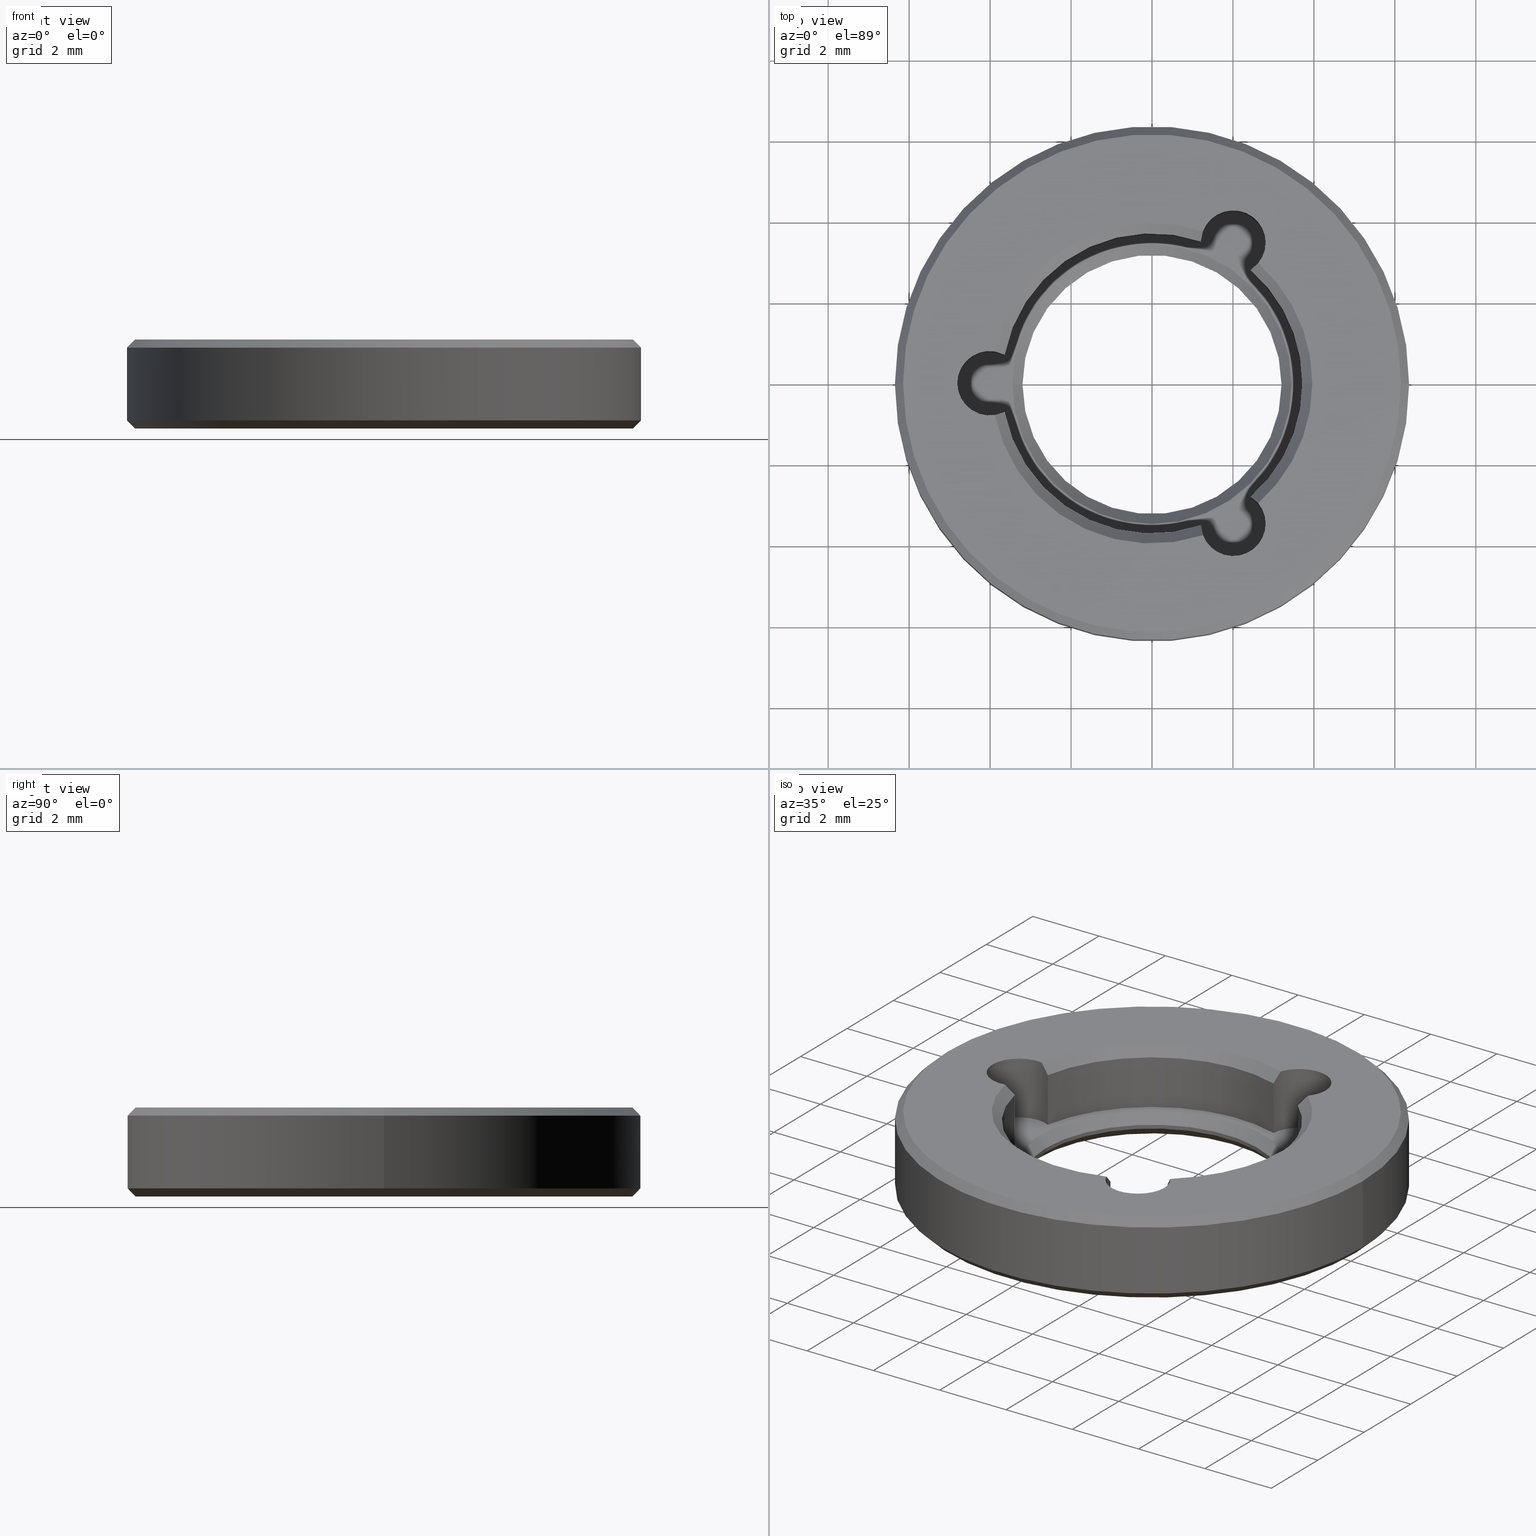
[diagram: canonical four-view strip — front | top / right | iso, engineering-drawing reading convention]
A machine part, canonical four-view strip (front | top / right | iso — engineering-drawing reading convention). The complete STEP part file that produces these views, byte-faithful:
ISO-10303-21;
HEADER;
FILE_DESCRIPTION (( 'STEP AP203' ),
    '1' );
FILE_NAME ('1.6.4.9-ZSJ-05-7.4.STEP',
    '2024-04-15T05:49:52',
    ( '' ),
    ( '' ),
    'SwSTEP 2.0',
    'SolidWorks 2021',
    '' );
FILE_SCHEMA (( 'CONFIG_CONTROL_DESIGN' ));
ENDSEC;

DATA;
#1 = VECTOR ( 'NONE', #695, 1000.000000000000000 ) ;
#2 = CARTESIAN_POINT ( 'NONE',  ( 0.000000000000000000, 0.000000000000000000, 0.6000000000000000888 ) ) ;
#3 = AXIS2_PLACEMENT_3D ( 'NONE', #308, #315, #158 ) ;
#4 = CONICAL_SURFACE ( 'NONE', #153, 3.450000000000003286, 0.7853981633974500554 ) ;
#5 = CARTESIAN_POINT ( 'NONE',  ( 2.004999999999967475, 3.472761869175617910, -1.662741699796954409 ) ) ;
#6 = LINE ( 'NONE', #15, #65 ) ;
#7 = VERTEX_POINT ( 'NONE', #389 ) ;
#8 = CARTESIAN_POINT ( 'NONE',  ( 0.000000000000000000, 0.000000000000000000, 0.1999999999999987899 ) ) ;
#9 = CARTESIAN_POINT ( 'NONE',  ( -3.641421446384038862, 0.7100351046352334494, 1.400000000000000133 ) ) ;
#10 = CARTESIAN_POINT ( 'NONE',  ( 2.005000000000016769, -3.472761869175589489, -1.662741699796954853 ) ) ;
#11 = VERTEX_POINT ( 'NONE', #59 ) ;
#12 = EDGE_CURVE ( 'NONE', #524, #459, #589, .T. ) ;
#13 = DIRECTION ( 'NONE',  ( -0.000000000000000000, 0.000000000000000000, 1.000000000000000000 ) ) ;
#14 = CARTESIAN_POINT ( 'NONE',  ( -6.150000000000000355, 7.654042494670957606E-16, 0.000000000000000000 ) ) ;
#15 = CARTESIAN_POINT ( 'NONE',  ( 3.200000000000000178, 0.000000000000000000, 0.000000000000000000 ) ) ;
#16 = VERTEX_POINT ( 'NONE', #618 ) ;
#17 = CC_DESIGN_PERSON_AND_ORGANIZATION_ASSIGNMENT ( #533, #321, ( #814 ) ) ;
#18 = LINE ( 'NONE', #368, #394 ) ;
#19 = SECURITY_CLASSIFICATION ( '', '', #116 ) ;
#20 = CIRCLE ( 'NONE', #313, 0.8000000000000010436 ) ;
#21 = LINE ( 'NONE', #783, #628 ) ;
#22 = AXIS2_PLACEMENT_3D ( 'NONE', #770, #502, #784 ) ;
#23 = DIRECTION ( 'NONE',  ( -0.000000000000000000, -0.000000000000000000, 1.000000000000000000 ) ) ;
#24 = ORIENTED_EDGE ( 'NONE', *, *, #363, .F. ) ;
#25 = CARTESIAN_POINT ( 'NONE',  ( 1.209650000469256748, -3.594431320801747987, 2.032439968515265427 ) ) ;
#26 = ADVANCED_FACE ( 'NONE', ( #331 ), #62, .F. ) ;
#27 = DIRECTION ( 'NONE',  ( 1.000000000000000000, 0.000000000000000000, 0.000000000000000000 ) ) ;
#28 = APPLICATION_CONTEXT ( 'configuration controlled 3d designs of mechanical parts and assemblies' ) ;
#29 = CYLINDRICAL_SURFACE ( 'NONE', #22, 3.709999999999999964 ) ;
#30 = VERTEX_POINT ( 'NONE', #197 ) ;
#31 = CARTESIAN_POINT ( 'NONE',  ( 2.435619161384848130, 2.798545926136458473, 0.5999999999999998668 ) ) ;
#32 = EDGE_CURVE ( 'NONE', #462, #103, #820, .T. ) ;
#33 = DIRECTION ( 'NONE',  ( -0.000000000000000000, -0.000000000000000000, -1.000000000000000000 ) ) ;
#34 = CALENDAR_DATE ( 2024, 15, 4 ) ;
#35 = VERTEX_POINT ( 'NONE', #892 ) ;
#36 = FACE_OUTER_BOUND ( 'NONE', #551, .T. ) ;
#37 = AXIS2_PLACEMENT_3D ( 'NONE', #757, #761, #411 ) ;
#38 = DIRECTION ( 'NONE',  ( -0.000000000000000000, -0.000000000000000000, 1.000000000000000000 ) ) ;
#39 = AXIS2_PLACEMENT_3D ( 'NONE', #733, #246, #105 ) ;
#40 = VERTEX_POINT ( 'NONE', #267 ) ;
#41 = DIRECTION ( 'NONE',  ( 1.000000000000000000, -3.794707603699261575E-15, 0.000000000000000000 ) ) ;
#42 = LINE ( 'NONE', #691, #543 ) ;
#43 = APPROVAL_DATE_TIME ( #672, #816 ) ;
#44 = ORIENTED_EDGE ( 'NONE', *, *, #473, .F. ) ;
#45 = EDGE_CURVE ( 'NONE', #524, #534, #154, .T. ) ;
#46 = PERSON_AND_ORGANIZATION ( #609, #477 ) ;
#47 = VERTEX_POINT ( 'NONE', #906 ) ;
#48 = VERTEX_POINT ( 'NONE', #14 ) ;
#49 = DATE_TIME_ROLE ( 'creation_date' ) ;
#50 = DIRECTION ( 'NONE',  ( -0.000000000000000000, -0.000000000000000000, -1.000000000000000000 ) ) ;
#51 = VECTOR ( 'NONE', #616, 1000.000000000000000 ) ;
#52 = ADVANCED_FACE ( 'NONE', ( #288 ), #196, .T. ) ;
#53 = ORIENTED_EDGE ( 'NONE', *, *, #423, .T. ) ;
#54 = CARTESIAN_POINT ( 'NONE',  ( 0.000000000000000000, 0.000000000000000000, 1.949999999999998179 ) ) ;
#55 = EDGE_CURVE ( 'NONE', #56, #342, #312, .T. ) ;
#56 = VERTEX_POINT ( 'NONE', #550 ) ;
#57 = ORIENTED_EDGE ( 'NONE', *, *, #45, .F. ) ;
#58 = DIRECTION ( 'NONE',  ( 0.000000000000000000, 0.000000000000000000, 1.000000000000000000 ) ) ;
#59 = CARTESIAN_POINT ( 'NONE',  ( 2.623940108579774222, -2.965895869140787511, 2.200000000000000178 ) ) ;
#60 = CIRCLE ( 'NONE', #592, 3.450000000000001510 ) ;
#61 = EDGE_CURVE ( 'NONE', #16, #11, #572, .T. ) ;
#62 = CONICAL_SURFACE ( 'NONE', #706, 3.709999999999999964, 0.7853981633974517207 ) ;
#63 = CIRCLE ( 'NONE', #605, 3.960000000000003517 ) ;
#64 = CARTESIAN_POINT ( 'NONE',  ( 2.435619161384888098, -2.798545926136423834, 1.949999999999998179 ) ) ;
#65 = VECTOR ( 'NONE', #23, 1000.000000000000000 ) ;
#66 = CARTESIAN_POINT ( 'NONE',  ( 2.623940108579730701, 2.965895869140826591, 2.200000000000000178 ) ) ;
#67 = EDGE_LOOP ( 'NONE', ( #880, #802, #866, #889 ) ) ;
#68 = EDGE_CURVE ( 'NONE', #656, #40, #714, .T. ) ;
#69 = DIRECTION ( 'NONE',  ( 1.000000000000000000, 0.000000000000000000, 0.000000000000000000 ) ) ;
#70 = FACE_OUTER_BOUND ( 'NONE', #221, .T. ) ;
#71 = ORIENTED_EDGE ( 'NONE', *, *, #754, .F. ) ;
#72 = DIRECTION ( 'NONE',  ( 1.000000000000000000, 0.000000000000000000, 0.000000000000000000 ) ) ;
#73 = ADVANCED_BREP_SHAPE_REPRESENTATION ( '1.6.4.9-ZSJ-05-7.4', ( #428, #872 ), #395 ) ;
#74 = CYLINDRICAL_SURFACE ( 'NONE', #168, 0.8000000000000008216 ) ;
#75 = EDGE_LOOP ( 'NONE', ( #461, #195, #408, #286 ) ) ;
#76 = APPROVAL_PERSON_ORGANIZATION ( #46, #681, #330 ) ;
#77 = CARTESIAN_POINT ( 'NONE',  ( 3.450000000000003286, 4.225031457058372768E-16, 0.000000000000000000 ) ) ;
#78 = VECTOR ( 'NONE', #276, 1000.000000000000114 ) ;
#79 = CIRCLE ( 'NONE', #778, 6.349999999999999645 ) ;
#80 = ADVANCED_FACE ( 'NONE', ( #834, #283 ), #141, .T. ) ;
#81 = CARTESIAN_POINT ( 'NONE',  ( 0.000000000000000000, 0.000000000000000000, 0.000000000000000000 ) ) ;
#82 = CARTESIAN_POINT ( 'NONE',  ( 0.000000000000000000, 0.000000000000000000, 0.3500000000000033085 ) ) ;
#83 = ORIENTED_EDGE ( 'NONE', *, *, #606, .T. ) ;
#84 = CARTESIAN_POINT ( 'NONE',  ( 2.004999999999967475, 3.472761869175617910, -1.662741699796954409 ) ) ;
#85 = CYLINDRICAL_SURFACE ( 'NONE', #895, 3.200000000000000178 ) ;
#86 = CARTESIAN_POINT ( 'NONE',  ( -3.641421446384038862, -0.7100351046352345596, 0.6000000000000003109 ) ) ;
#87 = ORIENTED_EDGE ( 'NONE', *, *, #689, .T. ) ;
#88 = DIRECTION ( 'NONE',  ( 0.7071067811865543451, 0.000000000000000000, 0.7071067811865408004 ) ) ;
#89 = DIRECTION ( 'NONE',  ( 1.000000000000000000, 0.000000000000000000, 0.000000000000000000 ) ) ;
#90 = LINE ( 'NONE', #357, #455 ) ;
#91 = EDGE_LOOP ( 'NONE', ( #625, #899, #450, #538 ) ) ;
#92 = ADVANCED_FACE ( 'NONE', ( #205 ), #74, .F. ) ;
#93 = FACE_OUTER_BOUND ( 'NONE', #302, .T. ) ;
#94 = AXIS2_PLACEMENT_3D ( 'NONE', #365, #654, #859 ) ;
#95 = AXIS2_PLACEMENT_3D ( 'NONE', #397, #58, #897 ) ;
#96 = DIRECTION ( 'NONE',  ( 0.000000000000000000, 0.000000000000000000, 1.000000000000000000 ) ) ;
#97 = DIRECTION ( 'NONE',  ( 0.000000000000000000, -0.000000000000000000, 1.000000000000000000 ) ) ;
#98 = EDGE_LOOP ( 'NONE', ( #353, #436, #233, #796 ) ) ;
#99 = DIRECTION ( 'NONE',  ( 1.000000000000000000, 0.000000000000000000, 0.000000000000000000 ) ) ;
#100 = EDGE_CURVE ( 'NONE', #676, #673, #579, .T. ) ;
#101 = CARTESIAN_POINT ( 'NONE',  ( -3.641421446384038862, 0.7100351046352334494, 0.6000000000000003109 ) ) ;
#102 = PERSON_AND_ORGANIZATION_ROLE ( 'creator' ) ;
#103 = VERTEX_POINT ( 'NONE', #843 ) ;
#104 = CARTESIAN_POINT ( 'NONE',  ( 2.435619161384848130, 2.798545926136458473, 1.949999999999997957 ) ) ;
#105 = DIRECTION ( 'NONE',  ( 1.000000000000000000, 0.000000000000000000, 0.000000000000000000 ) ) ;
#106 = COORDINATED_UNIVERSAL_TIME_OFFSET ( 8, 0, .AHEAD. ) ;
#107 = ORIENTED_EDGE ( 'NONE', *, *, #443, .F. ) ;
#108 = CARTESIAN_POINT ( 'NONE',  ( 1.205802284999181850, -3.508581030771663833, 0.6000000000000003109 ) ) ;
#109 = AXIS2_PLACEMENT_3D ( 'NONE', #216, #848, #160 ) ;
#110 = CARTESIAN_POINT ( 'NONE',  ( 0.000000000000000000, 0.000000000000000000, 0.6000000000000000888 ) ) ;
#111 = EDGE_CURVE ( 'NONE', #342, #686, #183, .T. ) ;
#112 = CIRCLE ( 'NONE', #617, 3.450000000000003286 ) ;
#113 = PERSON_AND_ORGANIZATION ( #609, #477 ) ;
#114 = ORIENTED_EDGE ( 'NONE', *, *, #55, .T. ) ;
#115 = AXIS2_PLACEMENT_3D ( 'NONE', #700, #229, #349 ) ;
#116 = SECURITY_CLASSIFICATION_LEVEL ( 'unclassified' ) ;
#117 = ORIENTED_EDGE ( 'NONE', *, *, #678, .F. ) ;
#118 = ADVANCED_FACE ( 'NONE', ( #474 ), #85, .F. ) ;
#119 = CALENDAR_DATE ( 2024, 15, 4 ) ;
#120 = ORIENTED_EDGE ( 'NONE', *, *, #204, .F. ) ;
#121 = EDGE_CURVE ( 'NONE', #845, #683, #680, .T. ) ;
#122 = AXIS2_PLACEMENT_3D ( 'NONE', #110, #375, #27 ) ;
#123 = ORIENTED_EDGE ( 'NONE', *, *, #674, .F. ) ;
#124 = VECTOR ( 'NONE', #860, 1000.000000000000114 ) ;
#125 = DIRECTION ( 'NONE',  ( 1.000000000000000000, 0.000000000000000000, 0.000000000000000000 ) ) ;
#126 = APPROVAL ( #388, 'δָ��' ) ;
#127 = ORIENTED_EDGE ( 'NONE', *, *, #297, .F. ) ;
#128 = ORIENTED_EDGE ( 'NONE', *, *, #890, .F. ) ;
#129 = FACE_BOUND ( 'NONE', #608, .T. ) ;
#130 = VERTEX_POINT ( 'NONE', #66 ) ;
#131 = FACE_OUTER_BOUND ( 'NONE', #253, .T. ) ;
#132 = LINE ( 'NONE', #9, #760 ) ;
#133 = ADVANCED_FACE ( 'NONE', ( #769 ), #777, .T. ) ;
#134 = AXIS2_PLACEMENT_3D ( 'NONE', #479, #145, #351 ) ;
#135 = VECTOR ( 'NONE', #88, 1000.000000000000114 ) ;
#136 = CARTESIAN_POINT ( 'NONE',  ( 0.000000000000000000, 0.000000000000000000, 0.000000000000000000 ) ) ;
#137 = AXIS2_PLACEMENT_3D ( 'NONE', #440, #285, #227 ) ;
#138 = DIRECTION ( 'NONE',  ( -0.000000000000000000, 0.000000000000000000, 1.000000000000000000 ) ) ;
#139 = EDGE_LOOP ( 'NONE', ( #272, #749, #279, #310, #711, #725, #471, #446, #688 ) ) ;
#140 = DIRECTION ( 'NONE',  ( 0.000000000000000000, 0.000000000000000000, 1.000000000000000000 ) ) ;
#141 = PLANE ( 'NONE',  #822 ) ;
#142 = EDGE_LOOP ( 'NONE', ( #53, #275 ) ) ;
#143 = DIRECTION ( 'NONE',  ( -0.4999999999999920064, -0.8660254037844432595, 0.000000000000000000 ) ) ;
#144 = ADVANCED_FACE ( 'NONE', ( #483, #70 ), #274, .T. ) ;
#145 = DIRECTION ( 'NONE',  ( -0.000000000000000000, -0.000000000000000000, -1.000000000000000000 ) ) ;
#146 = CARTESIAN_POINT ( 'NONE',  ( 3.709999999999999964, 0.000000000000000000, 1.949999999999998179 ) ) ;
#147 = ORIENTED_EDGE ( 'NONE', *, *, #225, .F. ) ;
#148 = LOCAL_TIME ( 13, 49, 52.00000000000000000, #106 ) ;
#149 = CLOSED_SHELL ( 'NONE', ( #92, #798, #506, #52, #767, #500, #409, #133, #577, #635, #840, #350, #663, #26, #894, #144, #335, #177, #80, #118, #642, #877, #309, #537, #804, #732, #823, #596 ) ) ;
#150 = DIRECTION ( 'NONE',  ( -0.7071067811865490160, 0.000000000000000000, -0.7071067811865459074 ) ) ;
#151 = AXIS2_PLACEMENT_3D ( 'NONE', #136, #541, #456 ) ;
#152 = EDGE_CURVE ( 'NONE', #656, #588, #255, .T. ) ;
#153 = AXIS2_PLACEMENT_3D ( 'NONE', #567, #220, #584 ) ;
#154 = LINE ( 'NONE', #624, #405 ) ;
#155 = CYLINDRICAL_SURFACE ( 'NONE', #690, 0.8000000000000008216 ) ;
#156 = ORIENTED_EDGE ( 'NONE', *, *, #32, .T. ) ;
#157 = FACE_OUTER_BOUND ( 'NONE', #547, .T. ) ;
#158 = DIRECTION ( 'NONE',  ( -0.5000000000000039968, 0.8660254037844362651, 0.000000000000000000 ) ) ;
#159 = EDGE_CURVE ( 'NONE', #332, #190, #132, .T. ) ;
#160 = DIRECTION ( 'NONE',  ( -1.000000000000000000, 0.000000000000000000, 0.000000000000000000 ) ) ;
#161 = ORIENTED_EDGE ( 'NONE', *, *, #111, .F. ) ;
#162 = DIRECTION ( 'NONE',  ( 1.000000000000000000, 0.000000000000000000, 0.000000000000000000 ) ) ;
#163 = DIRECTION ( 'NONE',  ( 0.000000000000000000, 0.000000000000000000, 1.000000000000000000 ) ) ;
#164 = DIRECTION ( 'NONE',  ( 0.000000000000000000, -0.000000000000000000, -1.000000000000000000 ) ) ;
#165 = VERTEX_POINT ( 'NONE', #583 ) ;
#166 = EDGE_CURVE ( 'NONE', #415, #35, #792, .T. ) ;
#167 = FACE_OUTER_BOUND ( 'NONE', #739, .T. ) ;
#168 = AXIS2_PLACEMENT_3D ( 'NONE', #5, #138, #219 ) ;
#169 = AXIS2_PLACEMENT_3D ( 'NONE', #772, #842, #234 ) ;
#170 = CARTESIAN_POINT ( 'NONE',  ( 6.150000000000000355, 0.000000000000000000, 0.000000000000000000 ) ) ;
#171 = DIRECTION ( 'NONE',  ( 0.7071067811865500152, 0.000000000000000000, 0.7071067811865451302 ) ) ;
#172 = ORIENTED_EDGE ( 'NONE', *, *, #465, .T. ) ;
#173 = DIRECTION ( 'NONE',  ( 1.000000000000000000, 0.000000000000000000, 0.000000000000000000 ) ) ;
#174 = DIRECTION ( 'NONE',  ( 1.000000000000000000, 0.000000000000000000, 0.000000000000000000 ) ) ;
#175 = EDGE_LOOP ( 'NONE', ( #835, #396, #117, #208 ) ) ;
#176 = CARTESIAN_POINT ( 'NONE',  ( 2.005000000000016769, -3.472761869175589489, 0.6000000000000003109 ) ) ;
#177 = ADVANCED_FACE ( 'NONE', ( #853 ), #728, .F. ) ;
#178 = DIRECTION ( 'NONE',  ( 1.000000000000000000, -3.552713678800500929E-15, 0.000000000000000000 ) ) ;
#179 = ORIENTED_EDGE ( 'NONE', *, *, #627, .T. ) ;
#180 = DIRECTION ( 'NONE',  ( 1.000000000000000000, 0.000000000000000000, 0.000000000000000000 ) ) ;
#181 = CIRCLE ( 'NONE', #403, 3.960000000000003517 ) ;
#182 = EDGE_CURVE ( 'NONE', #342, #7, #800, .T. ) ;
#183 = CIRCLE ( 'NONE', #646, 0.8000000000000008216 ) ;
#184 = DIRECTION ( 'NONE',  ( 0.000000000000000000, 0.000000000000000000, 1.000000000000000000 ) ) ;
#185 = CONICAL_SURFACE ( 'NONE', #39, 3.200000000000000178, 0.7853981633974579379 ) ;
#186 = CALENDAR_DATE ( 2024, 15, 4 ) ;
#187 = ORIENTED_EDGE ( 'NONE', *, *, #705, .T. ) ;
#188 = VECTOR ( 'NONE', #13, 1000.000000000000000 ) ;
#189 = PERSON_AND_ORGANIZATION ( #609, #477 ) ;
#190 = VERTEX_POINT ( 'NONE', #101 ) ;
#191 = EDGE_CURVE ( 'NONE', #30, #520, #883, .T. ) ;
#192 = DATE_AND_TIME ( #819, #493 ) ;
#193 = ORIENTED_EDGE ( 'NONE', *, *, #45, .T. ) ;
#194 = EDGE_CURVE ( 'NONE', #56, #190, #723, .T. ) ;
#195 = ORIENTED_EDGE ( 'NONE', *, *, #701, .T. ) ;
#196 = CONICAL_SURFACE ( 'NONE', #556, 6.349999999999999645, 0.7853981633974504994 ) ;
#197 = CARTESIAN_POINT ( 'NONE',  ( -6.149999999999999467, 0.000000000000000000, 2.200000000000000178 ) ) ;
#198 = CIRCLE ( 'NONE', #354, 3.200000000000000178 ) ;
#199 = AXIS2_PLACEMENT_3D ( 'NONE', #282, #786, #162 ) ;
#200 = CARTESIAN_POINT ( 'NONE',  ( 6.149999999999999467, 7.531577814756219106E-16, 2.200000000000000178 ) ) ;
#201 = ORIENTED_EDGE ( 'NONE', *, *, #182, .T. ) ;
#202 = ORIENTED_EDGE ( 'NONE', *, *, #852, .T. ) ;
#203 = CARTESIAN_POINT ( 'NONE',  ( -3.450000000000001510, 4.225031457058370303E-16, 0.6000000000000000888 ) ) ;
#204 = EDGE_CURVE ( 'NONE', #845, #190, #494, .T. ) ;
#205 = FACE_OUTER_BOUND ( 'NONE', #468, .T. ) ;
#206 = CARTESIAN_POINT ( 'NONE',  ( 0.000000000000000000, 0.000000000000000000, 1.949999999999998179 ) ) ;
#207 = CARTESIAN_POINT ( 'NONE',  ( 0.000000000000000000, 0.000000000000000000, 2.200000000000000178 ) ) ;
#208 = ORIENTED_EDGE ( 'NONE', *, *, #905, .F. ) ;
#209 = AXIS2_PLACEMENT_3D ( 'NONE', #214, #303, #781 ) ;
#210 = CARTESIAN_POINT ( 'NONE',  ( 0.000000000000000000, 0.000000000000000000, 0.000000000000000000 ) ) ;
#211 = DIRECTION ( 'NONE',  ( -0.000000000000000000, -0.000000000000000000, -1.000000000000000000 ) ) ;
#212 = ORIENTED_EDGE ( 'NONE', *, *, #606, .F. ) ;
#213 = EDGE_CURVE ( 'NONE', #845, #673, #21, .T. ) ;
#214 = CARTESIAN_POINT ( 'NONE',  ( 0.000000000000000000, 0.000000000000000000, 2.200000000000000178 ) ) ;
#215 = DIRECTION ( 'NONE',  ( 1.000000000000000000, 0.000000000000000000, 0.000000000000000000 ) ) ;
#216 = CARTESIAN_POINT ( 'NONE',  ( 0.000000000000000000, 0.000000000000000000, 2.200000000000000178 ) ) ;
#217 = ORIENTED_EDGE ( 'NONE', *, *, #225, .T. ) ;
#218 = CARTESIAN_POINT ( 'NONE',  ( 6.349999999999999645, 7.776507174585692163E-16, 2.000000000000000444 ) ) ;
#219 = DIRECTION ( 'NONE',  ( 1.000000000000000000, 0.000000000000000000, 0.000000000000000000 ) ) ;
#220 = DIRECTION ( 'NONE',  ( -0.000000000000000000, -0.000000000000000000, -1.000000000000000000 ) ) ;
#221 = EDGE_LOOP ( 'NONE', ( #595, #903 ) ) ;
#222 = CIRCLE ( 'NONE', #693, 3.450000000000001510 ) ;
#223 = CC_DESIGN_APPROVAL ( #681, ( #19 ) ) ;
#224 = DIRECTION ( 'NONE',  ( 0.000000000000000000, 0.000000000000000000, 1.000000000000000000 ) ) ;
#225 = EDGE_CURVE ( 'NONE', #462, #683, #239, .T. ) ;
#226 = CARTESIAN_POINT ( 'NONE',  ( 1.226823854763343435, 3.676560807795078656, 2.115846467630483119 ) ) ;
#227 = DIRECTION ( 'NONE',  ( -1.000000000000000000, 0.000000000000000000, 0.000000000000000000 ) ) ;
#228 = ORIENTED_EDGE ( 'NONE', *, *, #619, .T. ) ;
#229 = DIRECTION ( 'NONE',  ( -0.000000000000000000, -0.000000000000000000, 1.000000000000000000 ) ) ;
#230 = EDGE_CURVE ( 'NONE', #771, #386, #382, .T. ) ;
#231 = CARTESIAN_POINT ( 'NONE',  ( 3.709999999999999964, 0.000000000000000000, 1.949999999999998179 ) ) ;
#232 = CARTESIAN_POINT ( 'NONE',  ( 6.349999999999999645, 7.776507174585692163E-16, 2.200000000000000178 ) ) ;
#233 = ORIENTED_EDGE ( 'NONE', *, *, #619, .F. ) ;
#234 = DIRECTION ( 'NONE',  ( -1.000000000000000000, 0.000000000000000000, 0.000000000000000000 ) ) ;
#235 = CARTESIAN_POINT ( 'NONE',  ( 2.508043835738169580, -2.844803290495086845, 2.032439968515269424 ) ) ;
#236 = DIRECTION ( 'NONE',  ( 0.000000000000000000, 0.000000000000000000, 1.000000000000000000 ) ) ;
#237 = ORIENTED_EDGE ( 'NONE', *, *, #610, .T. ) ;
#238 = CARTESIAN_POINT ( 'NONE',  ( -3.880511221945140754, -0.7894508574685707991, 2.200000000000000178 ) ) ;
#239 = CIRCLE ( 'NONE', #531, 0.8000000000000008216 ) ;
#240 = VECTOR ( 'NONE', #164, 1000.000000000000000 ) ;
#241 = FACE_OUTER_BOUND ( 'NONE', #885, .T. ) ;
#242 =( LENGTH_UNIT ( ) NAMED_UNIT ( * ) SI_UNIT ( .MILLI., .METRE. ) );
#243 = ORIENTED_EDGE ( 'NONE', *, *, #111, .T. ) ;
#244 = EDGE_CURVE ( 'NONE', #861, #103, #590, .T. ) ;
#245 = CARTESIAN_POINT ( 'NONE',  ( -3.641421446384039751, 0.7100351046352340045, 1.949999999999998179 ) ) ;
#246 = DIRECTION ( 'NONE',  ( 0.000000000000000000, 0.000000000000000000, 1.000000000000000000 ) ) ;
#247 = DATE_AND_TIME ( #594, #148 ) ;
#248 = ORIENTED_EDGE ( 'NONE', *, *, #326, .T. ) ;
#249 = CYLINDRICAL_SURFACE ( 'NONE', #341, 0.8000000000000008216 ) ;
#250 = CC_DESIGN_PERSON_AND_ORGANIZATION_ASSIGNMENT ( #189, #252, ( #19 ) ) ;
#251 = DIRECTION ( 'NONE',  ( 1.000000000000000000, 0.000000000000000000, 0.000000000000000000 ) ) ;
#252 = PERSON_AND_ORGANIZATION_ROLE ( 'classification_officer' ) ;
#253 = EDGE_LOOP ( 'NONE', ( #818, #202, #172, #128 ) ) ;
#254 = EDGE_CURVE ( 'NONE', #11, #426, #745, .T. ) ;
#255 = CIRCLE ( 'NONE', #667, 6.349999999999999645 ) ;
#256 = AXIS2_PLACEMENT_3D ( 'NONE', #571, #304, #434 ) ;
#257 = MECHANICAL_CONTEXT ( 'NONE', #850, 'mechanical' ) ;
#258 = ORIENTED_EDGE ( 'NONE', *, *, #864, .F. ) ;
#259 = VERTEX_POINT ( 'NONE', #231 ) ;
#260 = COORDINATED_UNIVERSAL_TIME_OFFSET ( 8, 0, .AHEAD. ) ;
#261 = ORIENTED_EDGE ( 'NONE', *, *, #55, .F. ) ;
#262 = ORIENTED_EDGE ( 'NONE', *, *, #490, .T. ) ;
#263 = ORIENTED_EDGE ( 'NONE', *, *, #398, .T. ) ;
#264 = DIRECTION ( 'NONE',  ( 1.000000000000000000, 0.000000000000000000, 0.000000000000000000 ) ) ;
#265 = AXIS2_PLACEMENT_3D ( 'NONE', #82, #236, #789 ) ;
#266 = LOCAL_TIME ( 13, 49, 52.00000000000000000, #458 ) ;
#267 = CARTESIAN_POINT ( 'NONE',  ( -6.349999999999999645, 0.000000000000000000, 0.1999999999999987899 ) ) ;
#268 = CIRCLE ( 'NONE', #3, 0.8000000000000009326 ) ;
#269 = EDGE_CURVE ( 'NONE', #641, #165, #838, .T. ) ;
#270 = CARTESIAN_POINT ( 'NONE',  ( 0.000000000000000000, 0.000000000000000000, 0.3500000000000033085 ) ) ;
#271 = EDGE_LOOP ( 'NONE', ( #536, #696, #648, #750 ) ) ;
#272 = ORIENTED_EDGE ( 'NONE', *, *, #277, .F. ) ;
#273 = DIRECTION ( 'NONE',  ( 0.000000000000000000, -0.000000000000000000, 1.000000000000000000 ) ) ;
#274 = PLANE ( 'NONE',  #37 ) ;
#275 = ORIENTED_EDGE ( 'NONE', *, *, #374, .T. ) ;
#276 = DIRECTION ( 'NONE',  ( -0.7071067811865543451, 8.659560562355016675E-17, 0.7071067811865408004 ) ) ;
#277 = EDGE_CURVE ( 'NONE', #130, #7, #575, .T. ) ;
#278 = DIRECTION ( 'NONE',  ( 1.000000000000000000, 0.000000000000000000, 0.000000000000000000 ) ) ;
#279 = ORIENTED_EDGE ( 'NONE', *, *, #61, .T. ) ;
#280 = AXIS2_PLACEMENT_3D ( 'NONE', #355, #364, #633 ) ;
#281 = CONICAL_SURFACE ( 'NONE', #794, 6.349999999999999645, 0.7853981633974504994 ) ;
#282 = CARTESIAN_POINT ( 'NONE',  ( 0.000000000000000000, 0.000000000000000000, 1.949999999999998179 ) ) ;
#283 = FACE_OUTER_BOUND ( 'NONE', #888, .T. ) ;
#284 = EDGE_CURVE ( 'NONE', #103, #11, #268, .T. ) ;
#285 = DIRECTION ( 'NONE',  ( -0.000000000000000000, -0.000000000000000000, -1.000000000000000000 ) ) ;
#286 = ORIENTED_EDGE ( 'NONE', *, *, #901, .F. ) ;
#287 = CARTESIAN_POINT ( 'NONE',  ( 0.000000000000000000, 0.000000000000000000, 2.000000000000000444 ) ) ;
#288 = FACE_OUTER_BOUND ( 'NONE', #75, .T. ) ;
#289 = LINE ( 'NONE', #371, #240 ) ;
#290 = ORIENTED_EDGE ( 'NONE', *, *, #905, .T. ) ;
#291 = CARTESIAN_POINT ( 'NONE',  ( 1.226823854763395838, -3.676560807795061336, 2.115846467630482231 ) ) ;
#292 = B_SPLINE_CURVE_WITH_KNOTS ( 'NONE', 3,
 ( #245, #521, #803, #442 ),
 .UNSPECIFIED., .F., .F.,
 ( 4, 4 ),
 ( 2.870187315776022366E-07, 0.0003552106479451357600 ),
 .UNSPECIFIED. ) ;
#293 = CARTESIAN_POINT ( 'NONE',  ( 2.004999999999967475, 3.472761869175617910, 2.200000000000000178 ) ) ;
#294 = CYLINDRICAL_SURFACE ( 'NONE', #137, 6.349999999999999645 ) ;
#295 = VERTEX_POINT ( 'NONE', #170 ) ;
#296 = DIRECTION ( 'NONE',  ( 0.000000000000000000, 0.000000000000000000, 1.000000000000000000 ) ) ;
#297 = EDGE_CURVE ( 'NONE', #861, #676, #869, .T. ) ;
#298 = AXIS2_PLACEMENT_3D ( 'NONE', #206, #184, #264 ) ;
#299 = CIRCLE ( 'NONE', #467, 0.8000000000000008216 ) ;
#300 = CARTESIAN_POINT ( 'NONE',  ( 1.256571113365344994, 3.755346726609382735, 2.200000000000000178 ) ) ;
#301 = LINE ( 'NONE', #580, #124 ) ;
#302 = EDGE_LOOP ( 'NONE', ( #554, #734, #856, #484 ) ) ;
#303 = DIRECTION ( 'NONE',  ( 0.000000000000000000, 0.000000000000000000, -1.000000000000000000 ) ) ;
#304 = DIRECTION ( 'NONE',  ( 0.000000000000000000, 0.000000000000000000, 1.000000000000000000 ) ) ;
#305 = LINE ( 'NONE', #232, #773 ) ;
#306 = ORIENTED_EDGE ( 'NONE', *, *, #284, .T. ) ;
#307 = CARTESIAN_POINT ( 'NONE',  ( -4.009999999999999787, -4.910833664580885594E-16, -1.662741699796954853 ) ) ;
#308 = CARTESIAN_POINT ( 'NONE',  ( 2.005000000000016769, -3.472761869175589489, 2.200000000000000178 ) ) ;
#309 = ADVANCED_FACE ( 'NONE', ( #241 ), #185, .F. ) ;
#310 = ORIENTED_EDGE ( 'NONE', *, *, #284, .F. ) ;
#311 = DIRECTION ( 'NONE',  ( 1.000000000000000000, 0.000000000000000000, 0.000000000000000000 ) ) ;
#312 = CIRCLE ( 'NONE', #530, 0.8000000000000008216 ) ;
#313 = AXIS2_PLACEMENT_3D ( 'NONE', #555, #140, #143 ) ;
#314 = VECTOR ( 'NONE', #381, 1000.000000000000114 ) ;
#315 = DIRECTION ( 'NONE',  ( 0.000000000000000000, 0.000000000000000000, 1.000000000000000000 ) ) ;
#316 = PERSON_AND_ORGANIZATION ( #609, #477 ) ;
#317 = ORIENTED_EDGE ( 'NONE', *, *, #100, .T. ) ;
#318 = EDGE_CURVE ( 'NONE', #130, #16, #63, .T. ) ;
#319 = CARTESIAN_POINT ( 'NONE',  ( 2.508043835738128724, 2.844803290495122372, 2.032439968515269424 ) ) ;
#320 = CARTESIAN_POINT ( 'NONE',  ( -3.641421446384039751, 0.7100351046352340045, 1.949999999999998179 ) ) ;
#321 = PERSON_AND_ORGANIZATION_ROLE ( 'creator' ) ;
#322 = ORIENTED_EDGE ( 'NONE', *, *, #423, .F. ) ;
#323 = EDGE_CURVE ( 'NONE', #766, #40, #824, .T. ) ;
#324 = ORIENTED_EDGE ( 'NONE', *, *, #121, .T. ) ;
#325 = ORIENTED_EDGE ( 'NONE', *, *, #68, .F. ) ;
#326 = EDGE_CURVE ( 'NONE', #459, #790, #645, .T. ) ;
#327 = B_SPLINE_CURVE_WITH_KNOTS ( 'NONE', 3,
 ( #652, #25, #291, #569 ),
 .UNSPECIFIED., .F., .F.,
 ( 4, 4 ),
 ( 2.870187314672948299E-07, 0.0003552106479450251172 ),
 .UNSPECIFIED. ) ;
#328 = AXIS2_PLACEMENT_3D ( 'NONE', #444, #33, #793 ) ;
#329 = CIRCLE ( 'NONE', #466, 3.709999999999999964 ) ;
#330 = APPROVAL_ROLE ( '' ) ;
#331 = FACE_OUTER_BOUND ( 'NONE', #730, .T. ) ;
#332 = VERTEX_POINT ( 'NONE', #320 ) ;
#333 = CARTESIAN_POINT ( 'NONE',  ( 0.000000000000000000, 0.000000000000000000, 0.000000000000000000 ) ) ;
#334 = CARTESIAN_POINT ( 'NONE',  ( 2.805000000000017479, -3.472761869175589489, -1.662741699796954853 ) ) ;
#335 = ADVANCED_FACE ( 'NONE', ( #623, #129 ), #684, .F. ) ;
#336 = CARTESIAN_POINT ( 'NONE',  ( 2.435619161384887210, -2.798545926136423390, 0.6000000000000003109 ) ) ;
#337 = CONICAL_SURFACE ( 'NONE', #199, 3.709999999999999964, 0.7853981633974517207 ) ;
#338 = VERTEX_POINT ( 'NONE', #203 ) ;
#339 = AXIS2_PLACEMENT_3D ( 'NONE', #343, #900, #125 ) ;
#340 = EDGE_CURVE ( 'NONE', #259, #841, #692, .T. ) ;
#341 = AXIS2_PLACEMENT_3D ( 'NONE', #307, #525, #311 ) ;
#342 = VERTEX_POINT ( 'NONE', #904 ) ;
#343 = CARTESIAN_POINT ( 'NONE',  ( 0.000000000000000000, 0.000000000000000000, 2.200000000000000178 ) ) ;
#344 = DIRECTION ( 'NONE',  ( -0.000000000000000000, -0.000000000000000000, 1.000000000000000000 ) ) ;
#345 = ORIENTED_EDGE ( 'NONE', *, *, #12, .F. ) ;
#346 = CARTESIAN_POINT ( 'NONE',  ( -3.200000000000000178, 3.918869757271530460E-16, 0.3500000000000033085 ) ) ;
#347 = CARTESIAN_POINT ( 'NONE',  ( -3.797406985490453746, -0.7758197797036981980, 2.115846467630482675 ) ) ;
#348 = ORIENTED_EDGE ( 'NONE', *, *, #678, .T. ) ;
#349 = DIRECTION ( 'NONE',  ( 1.000000000000000000, 0.000000000000000000, 0.000000000000000000 ) ) ;
#350 = ADVANCED_FACE ( 'NONE', ( #400 ), #421, .F. ) ;
#351 = DIRECTION ( 'NONE',  ( 1.000000000000000000, 0.000000000000000000, 0.000000000000000000 ) ) ;
#352 = DIRECTION ( 'NONE',  ( 0.000000000000000000, 0.000000000000000000, 1.000000000000000000 ) ) ;
#353 = ORIENTED_EDGE ( 'NONE', *, *, #465, .F. ) ;
#354 = AXIS2_PLACEMENT_3D ( 'NONE', #410, #413, #697 ) ;
#355 = CARTESIAN_POINT ( 'NONE',  ( -4.009999999999999787, -4.910833664580885594E-16, 2.200000000000000178 ) ) ;
#356 = DIRECTION ( 'NONE',  ( 1.000000000000000000, 0.000000000000000000, 0.000000000000000000 ) ) ;
#357 = CARTESIAN_POINT ( 'NONE',  ( -3.200000000000000178, 3.918869757271530460E-16, 0.000000000000000000 ) ) ;
#358 = ORIENTED_EDGE ( 'NONE', *, *, #230, .F. ) ;
#359 = DIRECTION ( 'NONE',  ( -0.000000000000000000, 0.000000000000000000, 1.000000000000000000 ) ) ;
#360 = DIRECTION ( 'NONE',  ( 1.000000000000000000, 0.000000000000000000, 0.000000000000000000 ) ) ;
#361 = FACE_OUTER_BOUND ( 'NONE', #91, .T. ) ;
#362 = VERTEX_POINT ( 'NONE', #598 ) ;
#363 = EDGE_CURVE ( 'NONE', #459, #524, #198, .T. ) ;
#364 = DIRECTION ( 'NONE',  ( 0.000000000000000000, 0.000000000000000000, 1.000000000000000000 ) ) ;
#365 = CARTESIAN_POINT ( 'NONE',  ( 0.000000000000000000, 0.000000000000000000, 0.6000000000000000888 ) ) ;
#366 = DIRECTION ( 'NONE',  ( -0.000000000000000000, -0.000000000000000000, 1.000000000000000000 ) ) ;
#367 = ORIENTED_EDGE ( 'NONE', *, *, #782, .F. ) ;
#368 = CARTESIAN_POINT ( 'NONE',  ( 3.709999999999999964, 0.000000000000000000, 0.6000000000000000888 ) ) ;
#369 = CIRCLE ( 'NONE', #95, 3.709999999999999964 ) ;
#370 = CARTESIAN_POINT ( 'NONE',  ( 0.000000000000000000, 0.000000000000000000, 0.3500000000000033085 ) ) ;
#371 = CARTESIAN_POINT ( 'NONE',  ( 2.435619161384848130, 2.798545926136458473, 1.399999999999998801 ) ) ;
#372 = EDGE_LOOP ( 'NONE', ( #827, #685, #699, #488 ) ) ;
#373 = CARTESIAN_POINT ( 'NONE',  ( 0.000000000000000000, 0.000000000000000000, 2.200000000000000178 ) ) ;
#374 = EDGE_CURVE ( 'NONE', #48, #295, #707, .T. ) ;
#375 = DIRECTION ( 'NONE',  ( 0.000000000000000000, 0.000000000000000000, 1.000000000000000000 ) ) ;
#376 = ORIENTED_EDGE ( 'NONE', *, *, #457, .F. ) ;
#377 = CARTESIAN_POINT ( 'NONE',  ( -6.349999999999999645, 7.776507174585692163E-16, 0.1999999999999987899 ) ) ;
#378 = PRODUCT_RELATED_PRODUCT_CATEGORY ( 'detail', '', ( #787 ) ) ;
#379 = CARTESIAN_POINT ( 'NONE',  ( 2.005000000000016769, -3.472761869175589489, 0.6000000000000003109 ) ) ;
#380 = EDGE_LOOP ( 'NONE', ( #57, #24, #248, #503 ) ) ;
#381 = DIRECTION ( 'NONE',  ( -0.7071067811865490160, 8.659560562354953812E-17, 0.7071067811865460184 ) ) ;
#382 = CIRCLE ( 'NONE', #558, 3.200000000000000178 ) ;
#383 = AXIS2_PLACEMENT_3D ( 'NONE', #10, #97, #729 ) ;
#384 = DIRECTION ( 'NONE',  ( 1.000000000000000000, 0.000000000000000000, 0.000000000000000000 ) ) ;
#385 = DATE_AND_TIME ( #34, #266 ) ;
#386 = VERTEX_POINT ( 'NONE', #548 ) ;
#387 = EDGE_CURVE ( 'NONE', #415, #426, #42, .T. ) ;
#388 = APPROVAL_STATUS ( 'not_yet_approved' ) ;
#389 = CARTESIAN_POINT ( 'NONE',  ( 2.804999999999968185, 3.472761869175617910, 2.200000000000000178 ) ) ;
#390 = EDGE_CURVE ( 'NONE', #534, #790, #112, .T. ) ;
#391 = APPROVAL_STATUS ( 'not_yet_approved' ) ;
#392 = CARTESIAN_POINT ( 'NONE',  ( 0.000000000000000000, 0.000000000000000000, 0.2500000000000023870 ) ) ;
#393 = CC_DESIGN_SECURITY_CLASSIFICATION ( #19, ( #814 ) ) ;
#394 = VECTOR ( 'NONE', #704, 1000.000000000000000 ) ;
#395 =( GEOMETRIC_REPRESENTATION_CONTEXT ( 3 ) GLOBAL_UNCERTAINTY_ASSIGNED_CONTEXT ( ( #432 ) ) GLOBAL_UNIT_ASSIGNED_CONTEXT ( ( #242, #599, #664 ) ) REPRESENTATION_CONTEXT ( 'NONE', 'WORKASPACE' ) );
#396 = ORIENTED_EDGE ( 'NONE', *, *, #763, .F. ) ;
#397 = CARTESIAN_POINT ( 'NONE',  ( 0.000000000000000000, 0.000000000000000000, 1.949999999999998179 ) ) ;
#398 = EDGE_CURVE ( 'NONE', #673, #47, #329, .T. ) ;
#399 = ORIENTED_EDGE ( 'NONE', *, *, #754, .T. ) ;
#400 = FACE_OUTER_BOUND ( 'NONE', #175, .T. ) ;
#401 = ORIENTED_EDGE ( 'NONE', *, *, #326, .F. ) ;
#402 = DIRECTION ( 'NONE',  ( 0.000000000000000000, 0.000000000000000000, 1.000000000000000000 ) ) ;
#403 = AXIS2_PLACEMENT_3D ( 'NONE', #373, #507, #844 ) ;
#404 = APPROVAL_PERSON_ORGANIZATION ( #113, #816, #746 ) ;
#405 = VECTOR ( 'NONE', #406, 1000.000000000000000 ) ;
#406 = DIRECTION ( 'NONE',  ( 0.7071067811865487940, 8.659560562354950115E-17, -0.7071067811865463515 ) ) ;
#407 = AXIS2_PLACEMENT_3D ( 'NONE', #54, #476, #810 ) ;
#408 = ORIENTED_EDGE ( 'NONE', *, *, #323, .F. ) ;
#409 = ADVANCED_FACE ( 'NONE', ( #131 ), #829, .F. ) ;
#410 = CARTESIAN_POINT ( 'NONE',  ( 0.000000000000000000, 0.000000000000000000, 0.2500000000000023870 ) ) ;
#411 = DIRECTION ( 'NONE',  ( 1.000000000000000000, 0.000000000000000000, -0.000000000000000000 ) ) ;
#412 = ORIENTED_EDGE ( 'NONE', *, *, #744, .F. ) ;
#413 = DIRECTION ( 'NONE',  ( -0.000000000000000000, -0.000000000000000000, -1.000000000000000000 ) ) ;
#414 = CARTESIAN_POINT ( 'NONE',  ( -3.717693836207391467, -0.7496280303066577000, 2.032439968515264983 ) ) ;
#415 = VERTEX_POINT ( 'NONE', #336 ) ;
#416 = LINE ( 'NONE', #721, #682 ) ;
#417 = DIRECTION ( 'NONE',  ( -0.000000000000000000, -0.000000000000000000, -1.000000000000000000 ) ) ;
#418 = AXIS2_PLACEMENT_3D ( 'NONE', #557, #698, #360 ) ;
#419 = FACE_OUTER_BOUND ( 'NONE', #602, .T. ) ;
#420 = ORIENTED_EDGE ( 'NONE', *, *, #540, .F. ) ;
#421 = CONICAL_SURFACE ( 'NONE', #298, 3.709999999999999964, 0.7853981633974517207 ) ;
#422 = LINE ( 'NONE', #862, #135 ) ;
#423 = EDGE_CURVE ( 'NONE', #295, #48, #668, .T. ) ;
#424 = DIRECTION ( 'NONE',  ( 1.000000000000000000, 0.000000000000000000, 0.000000000000000000 ) ) ;
#425 = DIRECTION ( 'NONE',  ( 0.000000000000000000, -0.000000000000000000, 1.000000000000000000 ) ) ;
#426 = VERTEX_POINT ( 'NONE', #64 ) ;
#427 = DIRECTION ( 'NONE',  ( 0.000000000000000000, 0.000000000000000000, -1.000000000000000000 ) ) ;
#428 = MANIFOLD_SOLID_BREP ( '����(Բ��)1', #149 ) ;
#429 = DIRECTION ( 'NONE',  ( 0.000000000000000000, 0.000000000000000000, 1.000000000000000000 ) ) ;
#430 = FACE_OUTER_BOUND ( 'NONE', #67, .T. ) ;
#431 = ORIENTED_EDGE ( 'NONE', *, *, #152, .F. ) ;
#432 = UNCERTAINTY_MEASURE_WITH_UNIT (LENGTH_MEASURE( 1.000000000000000082E-05 ), #242, 'distance_accuracy_value', 'NONE');
#433 = DIRECTION ( 'NONE',  ( -0.000000000000000000, -0.000000000000000000, 1.000000000000000000 ) ) ;
#434 = DIRECTION ( 'NONE',  ( -0.5000000000000039968, 0.8660254037844362651, 0.000000000000000000 ) ) ;
#435 = CARTESIAN_POINT ( 'NONE',  ( 0.000000000000000000, 0.000000000000000000, 0.1999999999999987899 ) ) ;
#436 = ORIENTED_EDGE ( 'NONE', *, *, #473, .T. ) ;
#437 = EDGE_CURVE ( 'NONE', #520, #588, #832, .T. ) ;
#438 = LINE ( 'NONE', #661, #854 ) ;
#439 = CARTESIAN_POINT ( 'NONE',  ( 1.209650000469205899, 3.594431320801765306, 2.032439968515265427 ) ) ;
#440 = CARTESIAN_POINT ( 'NONE',  ( 0.000000000000000000, 0.000000000000000000, 2.200000000000000178 ) ) ;
#441 = ORIENTED_EDGE ( 'NONE', *, *, #340, .T. ) ;
#442 = CARTESIAN_POINT ( 'NONE',  ( -3.880511221945140754, 0.7894508574685697999, 2.200000000000000178 ) ) ;
#443 = EDGE_CURVE ( 'NONE', #426, #259, #369, .T. ) ;
#444 = CARTESIAN_POINT ( 'NONE',  ( -4.009999999999999787, -4.910833664580885594E-16, 0.6000000000000003109 ) ) ;
#445 = PERSON_AND_ORGANIZATION ( #609, #477 ) ;
#446 = ORIENTED_EDGE ( 'NONE', *, *, #763, .T. ) ;
#447 = DIRECTION ( 'NONE',  ( -0.000000000000000000, 0.000000000000000000, -1.000000000000000000 ) ) ;
#448 = CARTESIAN_POINT ( 'NONE',  ( 0.000000000000000000, 0.000000000000000000, 0.1999999999999987899 ) ) ;
#449 = PERSON_AND_ORGANIZATION ( #609, #477 ) ;
#450 = ORIENTED_EDGE ( 'NONE', *, *, #68, .T. ) ;
#451 = AXIS2_PLACEMENT_3D ( 'NONE', #287, #427, #565 ) ;
#452 = CARTESIAN_POINT ( 'NONE',  ( 0.000000000000000000, 0.000000000000000000, 0.6000000000000000888 ) ) ;
#453 = AXIS2_PLACEMENT_3D ( 'NONE', #392, #50, #887 ) ;
#454 = AXIS2_PLACEMENT_3D ( 'NONE', #293, #163, #518 ) ;
#455 = VECTOR ( 'NONE', #366, 1000.000000000000000 ) ;
#456 = DIRECTION ( 'NONE',  ( 1.000000000000000000, 0.000000000000000000, 0.000000000000000000 ) ) ;
#457 = EDGE_CURVE ( 'NONE', #520, #30, #776, .T. ) ;
#458 = COORDINATED_UNIVERSAL_TIME_OFFSET ( 8, 0, .AHEAD. ) ;
#459 = VERTEX_POINT ( 'NONE', #472 ) ;
#460 = PERSON_AND_ORGANIZATION_ROLE ( 'design_owner' ) ;
#461 = ORIENTED_EDGE ( 'NONE', *, *, #374, .F. ) ;
#462 = VERTEX_POINT ( 'NONE', #469 ) ;
#463 = EDGE_LOOP ( 'NONE', ( #212, #568, #496, #127 ) ) ;
#464 = EDGE_LOOP ( 'NONE', ( #263, #870, #755, #907 ) ) ;
#465 = EDGE_CURVE ( 'NONE', #386, #771, #497, .T. ) ;
#466 = AXIS2_PLACEMENT_3D ( 'NONE', #612, #552, #764 ) ;
#467 = AXIS2_PLACEMENT_3D ( 'NONE', #176, #799, #41 ) ;
#468 = EDGE_LOOP ( 'NONE', ( #114, #201, #262, #611, #849 ) ) ;
#469 = CARTESIAN_POINT ( 'NONE',  ( 2.805000000000017479, -3.472761869175589489, 0.6000000000000003109 ) ) ;
#470 = EDGE_LOOP ( 'NONE', ( #475, #237, #290, #660 ) ) ;
#471 = ORIENTED_EDGE ( 'NONE', *, *, #513, .F. ) ;
#472 = CARTESIAN_POINT ( 'NONE',  ( -3.200000000000000178, 3.918869757271530460E-16, 0.2500000000000023870 ) ) ;
#473 = EDGE_CURVE ( 'NONE', #386, #338, #482, .T. ) ;
#474 = FACE_OUTER_BOUND ( 'NONE', #271, .T. ) ;
#475 = ORIENTED_EDGE ( 'NONE', *, *, #194, .F. ) ;
#476 = DIRECTION ( 'NONE',  ( 0.000000000000000000, 0.000000000000000000, 1.000000000000000000 ) ) ;
#477 = ORGANIZATION ( 'δָ��', 'δָ��', '' ) ;
#478 = VECTOR ( 'NONE', #613, 1000.000000000000000 ) ;
#479 = CARTESIAN_POINT ( 'NONE',  ( 0.000000000000000000, 0.000000000000000000, 2.200000000000000178 ) ) ;
#480 = AXIS2_PLACEMENT_3D ( 'NONE', #836, #402, #891 ) ;
#481 = EDGE_LOOP ( 'NONE', ( #87, #156, #306, #512, #677 ) ) ;
#482 = LINE ( 'NONE', #346, #78 ) ;
#483 = FACE_BOUND ( 'NONE', #139, .T. ) ;
#484 = ORIENTED_EDGE ( 'NONE', *, *, #705, .F. ) ;
#485 = CARTESIAN_POINT ( 'NONE',  ( 6.149999999999999467, 7.654042494670954648E-16, 2.200000000000000178 ) ) ;
#486 = DIRECTION ( 'NONE',  ( 1.000000000000000000, 0.000000000000000000, 0.000000000000000000 ) ) ;
#487 = CARTESIAN_POINT ( 'NONE',  ( 2.435619161384848130, 2.798545926136458473, 1.949999999999997957 ) ) ;
#488 = ORIENTED_EDGE ( 'NONE', *, *, #443, .T. ) ;
#489 = CARTESIAN_POINT ( 'NONE',  ( 0.000000000000000000, 0.000000000000000000, 1.949999999999998179 ) ) ;
#490 = EDGE_CURVE ( 'NONE', #7, #641, #20, .T. ) ;
#491 = CONICAL_SURFACE ( 'NONE', #109, 6.149999999999999467, 0.7853981633974503884 ) ;
#492 = DIRECTION ( 'NONE',  ( -0.000000000000000000, -0.000000000000000000, -1.000000000000000000 ) ) ;
#493 = LOCAL_TIME ( 13, 49, 52.00000000000000000, #260 ) ;
#494 = CIRCLE ( 'NONE', #328, 0.8000000000000008216 ) ;
#495 = CARTESIAN_POINT ( 'NONE',  ( -3.450000000000003286, 0.000000000000000000, 0.000000000000000000 ) ) ;
#496 = ORIENTED_EDGE ( 'NONE', *, *, #100, .F. ) ;
#497 = CIRCLE ( 'NONE', #837, 3.200000000000000178 ) ;
#498 = AXIS2_PLACEMENT_3D ( 'NONE', #865, #352, #562 ) ;
#499 = CARTESIAN_POINT ( 'NONE',  ( 0.000000000000000000, 0.000000000000000000, 0.6000000000000000888 ) ) ;
#500 = ADVANCED_FACE ( 'NONE', ( #560 ), #649, .F. ) ;
#501 = CARTESIAN_POINT ( 'NONE',  ( 0.000000000000000000, 0.000000000000000000, 2.200000000000000178 ) ) ;
#502 = DIRECTION ( 'NONE',  ( -0.000000000000000000, -0.000000000000000000, 1.000000000000000000 ) ) ;
#503 = ORIENTED_EDGE ( 'NONE', *, *, #390, .F. ) ;
#504 = FACE_OUTER_BOUND ( 'NONE', #463, .T. ) ;
#505 = DIRECTION ( 'NONE',  ( -0.000000000000000000, -0.000000000000000000, -1.000000000000000000 ) ) ;
#506 = ADVANCED_FACE ( 'NONE', ( #157 ), #797, .T. ) ;
#507 = DIRECTION ( 'NONE',  ( -0.000000000000000000, -0.000000000000000000, -1.000000000000000000 ) ) ;
#508 = ORIENTED_EDGE ( 'NONE', *, *, #61, .F. ) ;
#509 = FACE_OUTER_BOUND ( 'NONE', #752, .T. ) ;
#510 = DIRECTION ( 'NONE',  ( -0.000000000000000000, 0.000000000000000000, 1.000000000000000000 ) ) ;
#511 = CYLINDRICAL_SURFACE ( 'NONE', #383, 0.8000000000000008216 ) ;
#512 = ORIENTED_EDGE ( 'NONE', *, *, #254, .T. ) ;
#513 = EDGE_CURVE ( 'NONE', #362, #676, #726, .T. ) ;
#514 = APPROVAL_PERSON_ORGANIZATION ( #316, #126, #886 ) ;
#515 = AXIS2_PLACEMENT_3D ( 'NONE', #658, #788, #874 ) ;
#516 = CYLINDRICAL_SURFACE ( 'NONE', #741, 3.709999999999999964 ) ;
#517 = AXIS2_PLACEMENT_3D ( 'NONE', #591, #808, #180 ) ;
#518 = DIRECTION ( 'NONE',  ( -0.4999999999999920064, -0.8660254037844432595, 0.000000000000000000 ) ) ;
#519 = DIRECTION ( 'NONE',  ( 1.000000000000000000, 0.000000000000000000, 0.000000000000000000 ) ) ;
#520 = VERTEX_POINT ( 'NONE', #485 ) ;
#521 = CARTESIAN_POINT ( 'NONE',  ( -3.717693836207391911, 0.7496280303066568118, 2.032439968515264983 ) ) ;
#522 = CARTESIAN_POINT ( 'NONE',  ( 2.804999999999968185, 3.472761869175617910, -1.662741699796954409 ) ) ;
#523 = APPROVAL_STATUS ( 'not_yet_approved' ) ;
#524 = VERTEX_POINT ( 'NONE', #582 ) ;
#525 = DIRECTION ( 'NONE',  ( -0.000000000000000000, -0.000000000000000000, 1.000000000000000000 ) ) ;
#526 = EDGE_CURVE ( 'NONE', #771, #716, #422, .T. ) ;
#527 = DIRECTION ( 'NONE',  ( -0.7071067811865487940, 0.000000000000000000, -0.7071067811865463515 ) ) ;
#528 = APPLICATION_PROTOCOL_DEFINITION ( 'international standard', 'config_control_design', 1994, #850 ) ;
#529 = ORIENTED_EDGE ( 'NONE', *, *, #627, .F. ) ;
#530 = AXIS2_PLACEMENT_3D ( 'NONE', #553, #211, #424 ) ;
#531 = AXIS2_PLACEMENT_3D ( 'NONE', #379, #662, #384 ) ;
#532 = VECTOR ( 'NONE', #171, 1000.000000000000114 ) ;
#533 = PERSON_AND_ORGANIZATION ( #609, #477 ) ;
#534 = VERTEX_POINT ( 'NONE', #77 ) ;
#535 = DATE_TIME_ROLE ( 'classification_date' ) ;
#536 = ORIENTED_EDGE ( 'NONE', *, *, #852, .F. ) ;
#537 = ADVANCED_FACE ( 'NONE', ( #167 ), #281, .T. ) ;
#538 = ORIENTED_EDGE ( 'NONE', *, *, #782, .T. ) ;
#539 = EDGE_LOOP ( 'NONE', ( #529, #637, #441, #807 ) ) ;
#540 = EDGE_CURVE ( 'NONE', #30, #656, #416, .T. ) ;
#541 = DIRECTION ( 'NONE',  ( -0.000000000000000000, -0.000000000000000000, 1.000000000000000000 ) ) ;
#542 = AXIS2_PLACEMENT_3D ( 'NONE', #207, #417, #639 ) ;
#543 = VECTOR ( 'NONE', #273, 1000.000000000000000 ) ;
#544 = AXIS2_PLACEMENT_3D ( 'NONE', #499, #224, #72 ) ;
#545 = APPROVAL_DATE_TIME ( #192, #681 ) ;
#546 = ORIENTED_EDGE ( 'NONE', *, *, #526, .T. ) ;
#547 = EDGE_LOOP ( 'NONE', ( #376, #632, #431, #420 ) ) ;
#548 = CARTESIAN_POINT ( 'NONE',  ( -3.200000000000000178, 3.918869757271530460E-16, 0.3500000000000033085 ) ) ;
#549 = EDGE_CURVE ( 'NONE', #35, #259, #18, .T. ) ;
#550 = CARTESIAN_POINT ( 'NONE',  ( 1.205802284999131668, 3.508581030771680265, 0.5999999999999998668 ) ) ;
#551 = EDGE_LOOP ( 'NONE', ( #747, #622, #348, #720, #317, #882 ) ) ;
#552 = DIRECTION ( 'NONE',  ( 0.000000000000000000, 0.000000000000000000, 1.000000000000000000 ) ) ;
#553 = CARTESIAN_POINT ( 'NONE',  ( 2.004999999999967475, 3.472761869175617910, 0.5999999999999998668 ) ) ;
#554 = ORIENTED_EDGE ( 'NONE', *, *, #340, .F. ) ;
#555 = CARTESIAN_POINT ( 'NONE',  ( 2.004999999999967475, 3.472761869175617910, 2.200000000000000178 ) ) ;
#556 = AXIS2_PLACEMENT_3D ( 'NONE', #566, #344, #215 ) ;
#557 = CARTESIAN_POINT ( 'NONE',  ( 0.000000000000000000, 0.000000000000000000, 0.6000000000000000888 ) ) ;
#558 = AXIS2_PLACEMENT_3D ( 'NONE', #370, #429, #737 ) ;
#559 = ORIENTED_EDGE ( 'NONE', *, *, #32, .F. ) ;
#560 = FACE_OUTER_BOUND ( 'NONE', #758, .T. ) ;
#561 = CARTESIAN_POINT ( 'NONE',  ( -3.880511221945140754, -0.7894508574685707991, 2.200000000000000178 ) ) ;
#562 = DIRECTION ( 'NONE',  ( 1.000000000000000000, 0.000000000000000000, 0.000000000000000000 ) ) ;
#563 = ORIENTED_EDGE ( 'NONE', *, *, #152, .T. ) ;
#564 = EDGE_CURVE ( 'NONE', #588, #656, #670, .T. ) ;
#565 = DIRECTION ( 'NONE',  ( 1.000000000000000000, 0.000000000000000000, 0.000000000000000000 ) ) ;
#566 = CARTESIAN_POINT ( 'NONE',  ( 0.000000000000000000, 0.000000000000000000, 0.1999999999999987899 ) ) ;
#567 = CARTESIAN_POINT ( 'NONE',  ( 0.000000000000000000, 0.000000000000000000, 0.000000000000000000 ) ) ;
#568 = ORIENTED_EDGE ( 'NONE', *, *, #398, .F. ) ;
#569 = CARTESIAN_POINT ( 'NONE',  ( 1.256571113365398507, -3.755346726609364527, 2.200000000000000178 ) ) ;
#570 = CONICAL_SURFACE ( 'NONE', #265, 3.200000000000000178, 0.7853981633974579379 ) ;
#571 = CARTESIAN_POINT ( 'NONE',  ( 2.005000000000016769, -3.472761869175589489, 2.200000000000000178 ) ) ;
#572 = CIRCLE ( 'NONE', #134, 3.960000000000003517 ) ;
#573 = CARTESIAN_POINT ( 'NONE',  ( 3.200000000000000178, 0.000000000000000000, 0.3500000000000033085 ) ) ;
#574 = EDGE_LOOP ( 'NONE', ( #228, #399 ) ) ;
#575 = CIRCLE ( 'NONE', #454, 0.8000000000000010436 ) ;
#576 = CARTESIAN_POINT ( 'NONE',  ( 1.205802284999131668, 3.508581030771680265, 1.399999999999998801 ) ) ;
#577 = ADVANCED_FACE ( 'NONE', ( #93 ), #630, .F. ) ;
#578 = CARTESIAN_POINT ( 'NONE',  ( 2.570583130727092325, -2.900741028091359919, 2.115846467630486227 ) ) ;
#579 = B_SPLINE_CURVE_WITH_KNOTS ( 'NONE', 3,
 ( #561, #347, #414, #839 ),
 .UNSPECIFIED., .F., .F.,
 ( 4, 4 ),
 ( 2.811693700563136224E-07, 0.0003552047985836145156 ),
 .UNSPECIFIED. ) ;
#580 = CARTESIAN_POINT ( 'NONE',  ( 6.349999999999999645, 0.000000000000000000, 0.1999999999999987899 ) ) ;
#581 = ORIENTED_EDGE ( 'NONE', *, *, #254, .F. ) ;
#582 = CARTESIAN_POINT ( 'NONE',  ( 3.200000000000000178, 0.000000000000000000, 0.2500000000000023870 ) ) ;
#583 = CARTESIAN_POINT ( 'NONE',  ( 1.205802284999131890, 3.508581030771681153, 1.949999999999997957 ) ) ;
#584 = DIRECTION ( 'NONE',  ( -1.000000000000000000, 0.000000000000000000, 0.000000000000000000 ) ) ;
#585 = ORIENTED_EDGE ( 'NONE', *, *, #833, .F. ) ;
#586 = CARTESIAN_POINT ( 'NONE',  ( 2.570583130727051024, 2.900741028091396334, 2.115846467630486671 ) ) ;
#587 = CARTESIAN_POINT ( 'NONE',  ( 0.000000000000000000, 0.000000000000000000, 2.200000000000000178 ) ) ;
#588 = VERTEX_POINT ( 'NONE', #218 ) ;
#589 = CIRCLE ( 'NONE', #453, 3.200000000000000178 ) ;
#590 = CIRCLE ( 'NONE', #256, 0.8000000000000009326 ) ;
#591 = CARTESIAN_POINT ( 'NONE',  ( 0.000000000000000000, 0.000000000000000000, 0.000000000000000000 ) ) ;
#592 = AXIS2_PLACEMENT_3D ( 'NONE', #452, #727, #99 ) ;
#593 = CARTESIAN_POINT ( 'NONE',  ( 0.000000000000000000, 0.000000000000000000, 2.200000000000000178 ) ) ;
#594 = CALENDAR_DATE ( 2024, 15, 4 ) ;
#595 = ORIENTED_EDGE ( 'NONE', *, *, #191, .T. ) ;
#596 = ADVANCED_FACE ( 'NONE', ( #509 ), #713, .F. ) ;
#597 = CARTESIAN_POINT ( 'NONE',  ( 2.623940108579730701, 2.965895869140826591, 2.200000000000000178 ) ) ;
#598 = CARTESIAN_POINT ( 'NONE',  ( -3.880511221945140754, 0.7894508574685697999, 2.200000000000000178 ) ) ;
#599 =( NAMED_UNIT ( * ) PLANE_ANGLE_UNIT ( ) SI_UNIT ( $, .RADIAN. ) );
#600 = ORIENTED_EDGE ( 'NONE', *, *, #166, .T. ) ;
#601 = EDGE_LOOP ( 'NONE', ( #563, #831, #785, #325 ) ) ;
#602 = EDGE_LOOP ( 'NONE', ( #559, #217, #123, #83, #679 ) ) ;
#603 = LOCAL_TIME ( 13, 49, 52.00000000000000000, #812 ) ;
#604 = AXIS2_PLACEMENT_3D ( 'NONE', #501, #96, #174 ) ;
#605 = AXIS2_PLACEMENT_3D ( 'NONE', #593, #805, #178 ) ;
#606 = EDGE_CURVE ( 'NONE', #47, #861, #327, .T. ) ;
#607 = CARTESIAN_POINT ( 'NONE',  ( 0.000000000000000000, 0.000000000000000000, 0.000000000000000000 ) ) ;
#608 = EDGE_LOOP ( 'NONE', ( #780, #743 ) ) ;
#609 = PERSON ( 'δָ��', 'δָ��', 'δָ��', ('δָ��'), ('δָ��'), ('δָ��') ) ;
#610 = EDGE_CURVE ( 'NONE', #56, #165, #791, .T. ) ;
#611 = ORIENTED_EDGE ( 'NONE', *, *, #269, .T. ) ;
#612 = CARTESIAN_POINT ( 'NONE',  ( 0.000000000000000000, 0.000000000000000000, 1.949999999999998179 ) ) ;
#613 = DIRECTION ( 'NONE',  ( 0.000000000000000000, -0.000000000000000000, 1.000000000000000000 ) ) ;
#614 = ORIENTED_EDGE ( 'NONE', *, *, #182, .F. ) ;
#615 = CIRCLE ( 'NONE', #498, 3.709999999999999964 ) ;
#616 = DIRECTION ( 'NONE',  ( 0.7071067811865490160, 8.659560562354950115E-17, -0.7071067811865459074 ) ) ;
#617 = AXIS2_PLACEMENT_3D ( 'NONE', #210, #687, #251 ) ;
#618 = CARTESIAN_POINT ( 'NONE',  ( 3.960000000000003517, 0.000000000000000000, 2.200000000000000178 ) ) ;
#619 = EDGE_CURVE ( 'NONE', #716, #338, #222, .T. ) ;
#620 = DIRECTION ( 'NONE',  ( 0.000000000000000000, 0.000000000000000000, 1.000000000000000000 ) ) ;
#621 = DIRECTION ( 'NONE',  ( 0.000000000000000000, 0.000000000000000000, 1.000000000000000000 ) ) ;
#622 = ORIENTED_EDGE ( 'NONE', *, *, #159, .F. ) ;
#623 = FACE_OUTER_BOUND ( 'NONE', #142, .T. ) ;
#624 = CARTESIAN_POINT ( 'NONE',  ( 3.450000000000003286, 4.225031457058372768E-16, 0.000000000000000000 ) ) ;
#625 = ORIENTED_EDGE ( 'NONE', *, *, #809, .F. ) ;
#626 = CARTESIAN_POINT ( 'NONE',  ( 1.256571113365344994, 3.755346726609382735, 2.200000000000000178 ) ) ;
#627 = EDGE_CURVE ( 'NONE', #35, #686, #811, .T. ) ;
#628 = VECTOR ( 'NONE', #38, 1000.000000000000000 ) ;
#629 = CARTESIAN_POINT ( 'NONE',  ( -6.349999999999999645, 0.000000000000000000, 2.200000000000000178 ) ) ;
#630 = CONICAL_SURFACE ( 'NONE', #893, 3.709999999999999964, 0.7853981633974517207 ) ;
#631 = FACE_OUTER_BOUND ( 'NONE', #98, .T. ) ;
#632 = ORIENTED_EDGE ( 'NONE', *, *, #437, .T. ) ;
#633 = DIRECTION ( 'NONE',  ( 1.000000000000000000, 0.000000000000000000, 0.000000000000000000 ) ) ;
#634 = DIRECTION ( 'NONE',  ( 1.000000000000000000, 0.000000000000000000, -0.000000000000000000 ) ) ;
#635 = ADVANCED_FACE ( 'NONE', ( #717 ), #643, .F. ) ;
#636 = DIRECTION ( 'NONE',  ( -0.000000000000000000, -0.000000000000000000, -1.000000000000000000 ) ) ;
#637 = ORIENTED_EDGE ( 'NONE', *, *, #549, .T. ) ;
#638 = DIRECTION ( 'NONE',  ( 1.000000000000000000, 0.000000000000000000, 0.000000000000000000 ) ) ;
#639 = DIRECTION ( 'NONE',  ( -1.000000000000000000, 0.000000000000000000, 0.000000000000000000 ) ) ;
#640 = FACE_OUTER_BOUND ( 'NONE', #380, .T. ) ;
#641 = VERTEX_POINT ( 'NONE', #626 ) ;
#642 = ADVANCED_FACE ( 'NONE', ( #504 ), #337, .F. ) ;
#643 = CYLINDRICAL_SURFACE ( 'NONE', #115, 3.709999999999999964 ) ;
#644 = LOCAL_TIME ( 13, 49, 52.00000000000000000, #806 ) ;
#645 = LINE ( 'NONE', #756, #896 ) ;
#646 = AXIS2_PLACEMENT_3D ( 'NONE', #830, #492, #486 ) ;
#647 = CARTESIAN_POINT ( 'NONE',  ( 1.256571113365398507, -3.755346726609364527, 2.200000000000000178 ) ) ;
#648 = ORIENTED_EDGE ( 'NONE', *, *, #890, .T. ) ;
#649 = CONICAL_SURFACE ( 'NONE', #169, 3.450000000000003286, 0.7853981633974500554 ) ;
#650 = DESIGN_CONTEXT ( 'detailed design', #28, 'design' ) ;
#651 = PRODUCT_DEFINITION_SHAPE ( 'NONE', 'NONE',  #748 ) ;
#652 = CARTESIAN_POINT ( 'NONE',  ( 1.205802284999181850, -3.508581030771663833, 1.949999999999998179 ) ) ;
#653 = CC_DESIGN_DATE_AND_TIME_ASSIGNMENT ( #675, #535, ( #19 ) ) ;
#654 = DIRECTION ( 'NONE',  ( 0.000000000000000000, 0.000000000000000000, 1.000000000000000000 ) ) ;
#655 = FACE_OUTER_BOUND ( 'NONE', #481, .T. ) ;
#656 = VERTEX_POINT ( 'NONE', #873 ) ;
#657 = CARTESIAN_POINT ( 'NONE',  ( -3.641421446384039307, -0.7100351046352348927, 1.949999999999998179 ) ) ;
#658 = CARTESIAN_POINT ( 'NONE',  ( 0.000000000000000000, 0.000000000000000000, 0.6000000000000000888 ) ) ;
#659 = APPLICATION_PROTOCOL_DEFINITION ( 'international standard', 'config_control_design', 1994, #28 ) ;
#660 = ORIENTED_EDGE ( 'NONE', *, *, #159, .T. ) ;
#661 = CARTESIAN_POINT ( 'NONE',  ( 1.205802284999182072, -3.508581030771663833, 1.400000000000000133 ) ) ;
#662 = DIRECTION ( 'NONE',  ( -0.000000000000000000, -0.000000000000000000, -1.000000000000000000 ) ) ;
#663 = ADVANCED_FACE ( 'NONE', ( #867 ), #516, .F. ) ;
#664 =( NAMED_UNIT ( * ) SI_UNIT ( $, .STERADIAN. ) SOLID_ANGLE_UNIT ( ) );
#665 = ORIENTED_EDGE ( 'NONE', *, *, #689, .F. ) ;
#666 = CC_DESIGN_APPROVAL ( #126, ( #748 ) ) ;
#667 = AXIS2_PLACEMENT_3D ( 'NONE', #765, #702, #356 ) ;
#668 = CIRCLE ( 'NONE', #815, 6.150000000000000355 ) ;
#669 = DIRECTION ( 'NONE',  ( -0.000000000000000000, -0.000000000000000000, 1.000000000000000000 ) ) ;
#670 = CIRCLE ( 'NONE', #451, 6.349999999999999645 ) ;
#671 = CARTESIAN_POINT ( 'NONE',  ( 2.435619161384888098, -2.798545926136423834, 1.949999999999998179 ) ) ;
#672 = DATE_AND_TIME ( #119, #644 ) ;
#673 = VERTEX_POINT ( 'NONE', #657 ) ;
#674 = EDGE_CURVE ( 'NONE', #47, #683, #438, .T. ) ;
#675 = DATE_AND_TIME ( #186, #603 ) ;
#676 = VERTEX_POINT ( 'NONE', #238 ) ;
#677 = ORIENTED_EDGE ( 'NONE', *, *, #387, .F. ) ;
#678 = EDGE_CURVE ( 'NONE', #332, #362, #292, .T. ) ;
#679 = ORIENTED_EDGE ( 'NONE', *, *, #244, .T. ) ;
#680 = CIRCLE ( 'NONE', #418, 3.709999999999999964 ) ;
#681 = APPROVAL ( #391, 'δָ��' ) ;
#682 = VECTOR ( 'NONE', #150, 1000.000000000000000 ) ;
#683 = VERTEX_POINT ( 'NONE', #108 ) ;
#684 = PLANE ( 'NONE',  #480 ) ;
#685 = ORIENTED_EDGE ( 'NONE', *, *, #166, .F. ) ;
#686 = VERTEX_POINT ( 'NONE', #31 ) ;
#687 = DIRECTION ( 'NONE',  ( 0.000000000000000000, 0.000000000000000000, 1.000000000000000000 ) ) ;
#688 = ORIENTED_EDGE ( 'NONE', *, *, #490, .F. ) ;
#689 = EDGE_CURVE ( 'NONE', #415, #462, #299, .T. ) ;
#690 = AXIS2_PLACEMENT_3D ( 'NONE', #724, #425, #710 ) ;
#691 = CARTESIAN_POINT ( 'NONE',  ( 2.435619161384887654, -2.798545926136422946, 1.400000000000000133 ) ) ;
#692 = CIRCLE ( 'NONE', #407, 3.709999999999999964 ) ;
#693 = AXIS2_PLACEMENT_3D ( 'NONE', #2, #851, #857 ) ;
#694 = SHAPE_DEFINITION_REPRESENTATION ( #651, #73 ) ;
#695 = DIRECTION ( 'NONE',  ( -0.000000000000000000, -0.000000000000000000, -1.000000000000000000 ) ) ;
#696 = ORIENTED_EDGE ( 'NONE', *, *, #363, .T. ) ;
#697 = DIRECTION ( 'NONE',  ( 1.000000000000000000, 0.000000000000000000, 0.000000000000000000 ) ) ;
#698 = DIRECTION ( 'NONE',  ( 0.000000000000000000, 0.000000000000000000, 1.000000000000000000 ) ) ;
#699 = ORIENTED_EDGE ( 'NONE', *, *, #387, .T. ) ;
#700 = CARTESIAN_POINT ( 'NONE',  ( 0.000000000000000000, 0.000000000000000000, 0.6000000000000000888 ) ) ;
#701 = EDGE_CURVE ( 'NONE', #48, #40, #735, .T. ) ;
#702 = DIRECTION ( 'NONE',  ( 0.000000000000000000, 0.000000000000000000, -1.000000000000000000 ) ) ;
#703 = ORIENTED_EDGE ( 'NONE', *, *, #701, .F. ) ;
#704 = DIRECTION ( 'NONE',  ( -0.000000000000000000, -0.000000000000000000, 1.000000000000000000 ) ) ;
#705 = EDGE_CURVE ( 'NONE', #841, #130, #712, .T. ) ;
#706 = AXIS2_PLACEMENT_3D ( 'NONE', #821, #898, #813 ) ;
#707 = CIRCLE ( 'NONE', #740, 6.150000000000000355 ) ;
#708 = CARTESIAN_POINT ( 'NONE',  ( 0.000000000000000000, 0.000000000000000000, 0.6000000000000000888 ) ) ;
#709 = CIRCLE ( 'NONE', #517, 3.450000000000003286 ) ;
#710 = DIRECTION ( 'NONE',  ( 1.000000000000000000, 0.000000000000000000, 0.000000000000000000 ) ) ;
#711 = ORIENTED_EDGE ( 'NONE', *, *, #244, .F. ) ;
#712 = B_SPLINE_CURVE_WITH_KNOTS ( 'NONE', 3,
 ( #104, #319, #586, #597 ),
 .UNSPECIFIED., .F., .F.,
 ( 4, 4 ),
 ( 2.870187302072658229E-07, 0.0003552106479437652743 ),
 .UNSPECIFIED. ) ;
#713 = CYLINDRICAL_SURFACE ( 'NONE', #826, 0.8000000000000008216 ) ;
#714 = LINE ( 'NONE', #629, #1 ) ;
#715 = FACE_OUTER_BOUND ( 'NONE', #470, .T. ) ;
#716 = VERTEX_POINT ( 'NONE', #876 ) ;
#717 = FACE_OUTER_BOUND ( 'NONE', #539, .T. ) ;
#718 = DIRECTION ( 'NONE',  ( -0.000000000000000000, -0.000000000000000000, 1.000000000000000000 ) ) ;
#719 = CARTESIAN_POINT ( 'NONE',  ( 6.349999999999999645, 7.776507174585692163E-16, 0.1999999999999987899 ) ) ;
#720 = ORIENTED_EDGE ( 'NONE', *, *, #513, .T. ) ;
#721 = CARTESIAN_POINT ( 'NONE',  ( -6.149999999999999467, 0.000000000000000000, 2.200000000000000178 ) ) ;
#722 = CARTESIAN_POINT ( 'NONE',  ( 1.205802284999131890, 3.508581030771681153, 1.949999999999997957 ) ) ;
#723 = CIRCLE ( 'NONE', #122, 3.709999999999999964 ) ;
#724 = CARTESIAN_POINT ( 'NONE',  ( 2.005000000000016769, -3.472761869175589489, -1.662741699796954853 ) ) ;
#725 = ORIENTED_EDGE ( 'NONE', *, *, #297, .T. ) ;
#726 = CIRCLE ( 'NONE', #280, 0.8000000000000008216 ) ;
#727 = DIRECTION ( 'NONE',  ( -0.000000000000000000, -0.000000000000000000, -1.000000000000000000 ) ) ;
#728 = CYLINDRICAL_SURFACE ( 'NONE', #515, 3.709999999999999964 ) ;
#729 = DIRECTION ( 'NONE',  ( 1.000000000000000000, 0.000000000000000000, 0.000000000000000000 ) ) ;
#730 = EDGE_LOOP ( 'NONE', ( #585, #107, #581, #508 ) ) ;
#731 = CARTESIAN_POINT ( 'NONE',  ( 0.000000000000000000, 0.000000000000000000, 0.6000000000000000888 ) ) ;
#732 = ADVANCED_FACE ( 'NONE', ( #36 ), #249, .F. ) ;
#733 = CARTESIAN_POINT ( 'NONE',  ( 0.000000000000000000, 0.000000000000000000, 0.3500000000000033085 ) ) ;
#734 = ORIENTED_EDGE ( 'NONE', *, *, #833, .T. ) ;
#735 = LINE ( 'NONE', #377, #314 ) ;
#736 = CC_DESIGN_PERSON_AND_ORGANIZATION_ASSIGNMENT ( #449, #102, ( #748 ) ) ;
#737 = DIRECTION ( 'NONE',  ( 1.000000000000000000, 0.000000000000000000, 0.000000000000000000 ) ) ;
#738 = APPROVAL_DATE_TIME ( #247, #126 ) ;
#739 = EDGE_LOOP ( 'NONE', ( #703, #322, #828, #367 ) ) ;
#740 = AXIS2_PLACEMENT_3D ( 'NONE', #333, #878, #753 ) ;
#741 = AXIS2_PLACEMENT_3D ( 'NONE', #731, #669, #173 ) ;
#742 = DIRECTION ( 'NONE',  ( -0.000000000000000000, -0.000000000000000000, -1.000000000000000000 ) ) ;
#743 = ORIENTED_EDGE ( 'NONE', *, *, #390, .T. ) ;
#744 = EDGE_CURVE ( 'NONE', #790, #534, #709, .T. ) ;
#745 = B_SPLINE_CURVE_WITH_KNOTS ( 'NONE', 3,
 ( #863, #578, #235, #671 ),
 .UNSPECIFIED., .F., .F.,
 ( 4, 4 ),
 ( 2.811693700402019441E-07, 0.0003552047985835973852 ),
 .UNSPECIFIED. ) ;
#746 = APPROVAL_ROLE ( '' ) ;
#747 = ORIENTED_EDGE ( 'NONE', *, *, #204, .T. ) ;
#748 = PRODUCT_DEFINITION ( 'δ֪', '', #814, #650 ) ;
#749 = ORIENTED_EDGE ( 'NONE', *, *, #318, .T. ) ;
#750 = ORIENTED_EDGE ( 'NONE', *, *, #230, .T. ) ;
#751 = AXIS2_PLACEMENT_3D ( 'NONE', #587, #505, #868 ) ;
#752 = EDGE_LOOP ( 'NONE', ( #614, #243, #258, #187, #762 ) ) ;
#753 = DIRECTION ( 'NONE',  ( 1.000000000000000000, 0.000000000000000000, 0.000000000000000000 ) ) ;
#754 = EDGE_CURVE ( 'NONE', #338, #716, #60, .T. ) ;
#755 = ORIENTED_EDGE ( 'NONE', *, *, #121, .F. ) ;
#756 = CARTESIAN_POINT ( 'NONE',  ( -3.450000000000003286, 0.000000000000000000, 0.000000000000000000 ) ) ;
#757 = CARTESIAN_POINT ( 'NONE',  ( 0.000000000000000000, 0.000000000000000000, 2.200000000000000178 ) ) ;
#758 = EDGE_LOOP ( 'NONE', ( #345, #193, #412, #401 ) ) ;
#759 = CARTESIAN_POINT ( 'NONE',  ( 0.000000000000000000, 0.000000000000000000, 0.000000000000000000 ) ) ;
#760 = VECTOR ( 'NONE', #847, 1000.000000000000000 ) ;
#761 = DIRECTION ( 'NONE',  ( 0.000000000000000000, 0.000000000000000000, 1.000000000000000000 ) ) ;
#762 = ORIENTED_EDGE ( 'NONE', *, *, #277, .T. ) ;
#763 = EDGE_CURVE ( 'NONE', #362, #641, #181, .T. ) ;
#764 = DIRECTION ( 'NONE',  ( 1.000000000000000000, 0.000000000000000000, 0.000000000000000000 ) ) ;
#765 = CARTESIAN_POINT ( 'NONE',  ( 0.000000000000000000, 0.000000000000000000, 2.000000000000000444 ) ) ;
#766 = VERTEX_POINT ( 'NONE', #719 ) ;
#767 = ADVANCED_FACE ( 'NONE', ( #631 ), #570, .F. ) ;
#768 = DIRECTION ( 'NONE',  ( 1.000000000000000000, 0.000000000000000000, 0.000000000000000000 ) ) ;
#769 = FACE_OUTER_BOUND ( 'NONE', #601, .T. ) ;
#770 = CARTESIAN_POINT ( 'NONE',  ( 0.000000000000000000, 0.000000000000000000, 0.6000000000000000888 ) ) ;
#771 = VERTEX_POINT ( 'NONE', #573 ) ;
#772 = CARTESIAN_POINT ( 'NONE',  ( 0.000000000000000000, 0.000000000000000000, 0.000000000000000000 ) ) ;
#773 = VECTOR ( 'NONE', #636, 1000.000000000000000 ) ;
#774 = CC_DESIGN_APPROVAL ( #816, ( #814 ) ) ;
#775 = VECTOR ( 'NONE', #510, 1000.000000000000000 ) ;
#776 = CIRCLE ( 'NONE', #339, 6.149999999999999467 ) ;
#777 = CYLINDRICAL_SURFACE ( 'NONE', #542, 6.349999999999999645 ) ;
#778 = AXIS2_PLACEMENT_3D ( 'NONE', #435, #795, #779 ) ;
#779 = DIRECTION ( 'NONE',  ( 1.000000000000000000, 0.000000000000000000, 0.000000000000000000 ) ) ;
#780 = ORIENTED_EDGE ( 'NONE', *, *, #744, .T. ) ;
#781 = DIRECTION ( 'NONE',  ( -1.000000000000000000, 0.000000000000000000, 0.000000000000000000 ) ) ;
#782 = EDGE_CURVE ( 'NONE', #40, #766, #79, .T. ) ;
#783 = CARTESIAN_POINT ( 'NONE',  ( -3.641421446384038862, -0.7100351046352344486, 1.400000000000000133 ) ) ;
#784 = DIRECTION ( 'NONE',  ( 1.000000000000000000, 0.000000000000000000, 0.000000000000000000 ) ) ;
#785 = ORIENTED_EDGE ( 'NONE', *, *, #323, .T. ) ;
#786 = DIRECTION ( 'NONE',  ( 0.000000000000000000, 0.000000000000000000, 1.000000000000000000 ) ) ;
#787 = PRODUCT ( '1.6.4.9-ZSJ-05-7.4', '1.6.4.9-ZSJ-05-7.4', '', ( #257 ) ) ;
#788 = DIRECTION ( 'NONE',  ( -0.000000000000000000, -0.000000000000000000, 1.000000000000000000 ) ) ;
#789 = DIRECTION ( 'NONE',  ( 1.000000000000000000, 0.000000000000000000, 0.000000000000000000 ) ) ;
#790 = VERTEX_POINT ( 'NONE', #495 ) ;
#791 = LINE ( 'NONE', #576, #188 ) ;
#792 = CIRCLE ( 'NONE', #94, 3.709999999999999964 ) ;
#793 = DIRECTION ( 'NONE',  ( 1.000000000000000000, 0.000000000000000000, 0.000000000000000000 ) ) ;
#794 = AXIS2_PLACEMENT_3D ( 'NONE', #8, #433, #768 ) ;
#795 = DIRECTION ( 'NONE',  ( -0.000000000000000000, -0.000000000000000000, 1.000000000000000000 ) ) ;
#796 = ORIENTED_EDGE ( 'NONE', *, *, #526, .F. ) ;
#797 = CONICAL_SURFACE ( 'NONE', #209, 6.149999999999999467, 0.7853981633974503884 ) ;
#798 = ADVANCED_FACE ( 'NONE', ( #655 ), #155, .F. ) ;
#799 = DIRECTION ( 'NONE',  ( -0.000000000000000000, -0.000000000000000000, -1.000000000000000000 ) ) ;
#800 = LINE ( 'NONE', #522, #775 ) ;
#801 = DIRECTION ( 'NONE',  ( 0.000000000000000000, 0.000000000000000000, 1.000000000000000000 ) ) ;
#802 = ORIENTED_EDGE ( 'NONE', *, *, #191, .F. ) ;
#803 = CARTESIAN_POINT ( 'NONE',  ( -3.797406985490454190, 0.7758197797036971988, 2.115846467630482675 ) ) ;
#804 = ADVANCED_FACE ( 'NONE', ( #430 ), #491, .T. ) ;
#805 = DIRECTION ( 'NONE',  ( -0.000000000000000000, -0.000000000000000000, -1.000000000000000000 ) ) ;
#806 = COORDINATED_UNIVERSAL_TIME_OFFSET ( 8, 0, .AHEAD. ) ;
#807 = ORIENTED_EDGE ( 'NONE', *, *, #864, .T. ) ;
#808 = DIRECTION ( 'NONE',  ( 0.000000000000000000, 0.000000000000000000, 1.000000000000000000 ) ) ;
#809 = EDGE_CURVE ( 'NONE', #588, #766, #305, .T. ) ;
#810 = DIRECTION ( 'NONE',  ( 1.000000000000000000, 0.000000000000000000, 0.000000000000000000 ) ) ;
#811 = CIRCLE ( 'NONE', #544, 3.709999999999999964 ) ;
#812 = COORDINATED_UNIVERSAL_TIME_OFFSET ( 8, 0, .AHEAD. ) ;
#813 = DIRECTION ( 'NONE',  ( 1.000000000000000000, 0.000000000000000000, 0.000000000000000000 ) ) ;
#814 = PRODUCT_DEFINITION_FORMATION_WITH_SPECIFIED_SOURCE ( '�κ�', '', #787, .NOT_KNOWN. ) ;
#815 = AXIS2_PLACEMENT_3D ( 'NONE', #759, #742, #825 ) ;
#816 = APPROVAL ( #523, 'δָ��' ) ;
#817 = PERSON_AND_ORGANIZATION ( #609, #477 ) ;
#818 = ORIENTED_EDGE ( 'NONE', *, *, #12, .T. ) ;
#819 = CALENDAR_DATE ( 2024, 15, 4 ) ;
#820 = LINE ( 'NONE', #334, #478 ) ;
#821 = CARTESIAN_POINT ( 'NONE',  ( 0.000000000000000000, 0.000000000000000000, 1.949999999999998179 ) ) ;
#822 = AXIS2_PLACEMENT_3D ( 'NONE', #708, #621, #634 ) ;
#823 = ADVANCED_FACE ( 'NONE', ( #419 ), #511, .F. ) ;
#824 = CIRCLE ( 'NONE', #884, 6.349999999999999645 ) ;
#825 = DIRECTION ( 'NONE',  ( 1.000000000000000000, 0.000000000000000000, 0.000000000000000000 ) ) ;
#826 = AXIS2_PLACEMENT_3D ( 'NONE', #84, #359, #638 ) ;
#827 = ORIENTED_EDGE ( 'NONE', *, *, #549, .F. ) ;
#828 = ORIENTED_EDGE ( 'NONE', *, *, #901, .T. ) ;
#829 = CYLINDRICAL_SURFACE ( 'NONE', #151, 3.200000000000000178 ) ;
#830 = CARTESIAN_POINT ( 'NONE',  ( 2.004999999999967475, 3.472761869175617910, 0.5999999999999998668 ) ) ;
#831 = ORIENTED_EDGE ( 'NONE', *, *, #809, .T. ) ;
#832 = LINE ( 'NONE', #200, #51 ) ;
#833 = EDGE_CURVE ( 'NONE', #259, #16, #855, .T. ) ;
#834 = FACE_BOUND ( 'NONE', #574, .T. ) ;
#835 = ORIENTED_EDGE ( 'NONE', *, *, #269, .F. ) ;
#836 = CARTESIAN_POINT ( 'NONE',  ( 0.000000000000000000, 0.000000000000000000, 0.000000000000000000 ) ) ;
#837 = AXIS2_PLACEMENT_3D ( 'NONE', #270, #620, #69 ) ;
#838 = B_SPLINE_CURVE_WITH_KNOTS ( 'NONE', 3,
 ( #300, #226, #439, #722 ),
 .UNSPECIFIED., .F., .F.,
 ( 4, 4 ),
 ( 2.811693700384007814E-07, 0.0003552047985835965721 ),
 .UNSPECIFIED. ) ;
#839 = CARTESIAN_POINT ( 'NONE',  ( -3.641421446384039307, -0.7100351046352348927, 1.949999999999998179 ) ) ;
#840 = ADVANCED_FACE ( 'NONE', ( #715 ), #29, .F. ) ;
#841 = VERTEX_POINT ( 'NONE', #487 ) ;
#842 = DIRECTION ( 'NONE',  ( -0.000000000000000000, -0.000000000000000000, -1.000000000000000000 ) ) ;
#843 = CARTESIAN_POINT ( 'NONE',  ( 2.805000000000017479, -3.472761869175589489, 2.200000000000000178 ) ) ;
#844 = DIRECTION ( 'NONE',  ( 1.000000000000000000, 0.000000000000000000, 0.000000000000000000 ) ) ;
#845 = VERTEX_POINT ( 'NONE', #86 ) ;
#846 = DIRECTION ( 'NONE',  ( 1.000000000000000000, 0.000000000000000000, 0.000000000000000000 ) ) ;
#847 = DIRECTION ( 'NONE',  ( 0.000000000000000000, 0.000000000000000000, -1.000000000000000000 ) ) ;
#848 = DIRECTION ( 'NONE',  ( 0.000000000000000000, 0.000000000000000000, -1.000000000000000000 ) ) ;
#849 = ORIENTED_EDGE ( 'NONE', *, *, #610, .F. ) ;
#850 = APPLICATION_CONTEXT ( 'configuration controlled 3d designs of mechanical parts and assemblies' ) ;
#851 = DIRECTION ( 'NONE',  ( -0.000000000000000000, -0.000000000000000000, -1.000000000000000000 ) ) ;
#852 = EDGE_CURVE ( 'NONE', #459, #386, #90, .T. ) ;
#853 = FACE_OUTER_BOUND ( 'NONE', #464, .T. ) ;
#854 = VECTOR ( 'NONE', #447, 1000.000000000000000 ) ;
#855 = LINE ( 'NONE', #146, #532 ) ;
#856 = ORIENTED_EDGE ( 'NONE', *, *, #318, .F. ) ;
#857 = DIRECTION ( 'NONE',  ( 1.000000000000000000, 0.000000000000000000, 0.000000000000000000 ) ) ;
#858 = CC_DESIGN_PERSON_AND_ORGANIZATION_ASSIGNMENT ( #445, #460, ( #787 ) ) ;
#859 = DIRECTION ( 'NONE',  ( 1.000000000000000000, 0.000000000000000000, 0.000000000000000000 ) ) ;
#860 = DIRECTION ( 'NONE',  ( 0.7071067811865490160, 0.000000000000000000, 0.7071067811865460184 ) ) ;
#861 = VERTEX_POINT ( 'NONE', #647 ) ;
#862 = CARTESIAN_POINT ( 'NONE',  ( 3.200000000000000178, 0.000000000000000000, 0.3500000000000033085 ) ) ;
#863 = CARTESIAN_POINT ( 'NONE',  ( 2.623940108579774222, -2.965895869140787511, 2.200000000000000178 ) ) ;
#864 = EDGE_CURVE ( 'NONE', #841, #686, #289, .T. ) ;
#865 = CARTESIAN_POINT ( 'NONE',  ( 0.000000000000000000, 0.000000000000000000, 1.949999999999998179 ) ) ;
#866 = ORIENTED_EDGE ( 'NONE', *, *, #540, .T. ) ;
#867 = FACE_OUTER_BOUND ( 'NONE', #372, .T. ) ;
#868 = DIRECTION ( 'NONE',  ( 1.000000000000000000, 0.000000000000000000, 0.000000000000000000 ) ) ;
#869 = CIRCLE ( 'NONE', #751, 3.960000000000003517 ) ;
#870 = ORIENTED_EDGE ( 'NONE', *, *, #674, .T. ) ;
#871 = CC_DESIGN_DATE_AND_TIME_ASSIGNMENT ( #385, #49, ( #748 ) ) ;
#872 = AXIS2_PLACEMENT_3D ( 'NONE', #607, #801, #519 ) ;
#873 = CARTESIAN_POINT ( 'NONE',  ( -6.349999999999999645, 0.000000000000000000, 2.000000000000000444 ) ) ;
#874 = DIRECTION ( 'NONE',  ( 1.000000000000000000, 0.000000000000000000, 0.000000000000000000 ) ) ;
#875 = ORIENTED_EDGE ( 'NONE', *, *, #194, .T. ) ;
#876 = CARTESIAN_POINT ( 'NONE',  ( 3.450000000000001510, 0.000000000000000000, 0.6000000000000000888 ) ) ;
#877 = ADVANCED_FACE ( 'NONE', ( #640 ), #4, .F. ) ;
#878 = DIRECTION ( 'NONE',  ( -0.000000000000000000, -0.000000000000000000, -1.000000000000000000 ) ) ;
#879 = PERSON_AND_ORGANIZATION_ROLE ( 'design_supplier' ) ;
#880 = ORIENTED_EDGE ( 'NONE', *, *, #437, .F. ) ;
#881 = CC_DESIGN_PERSON_AND_ORGANIZATION_ASSIGNMENT ( #817, #879, ( #814 ) ) ;
#882 = ORIENTED_EDGE ( 'NONE', *, *, #213, .F. ) ;
#883 = CIRCLE ( 'NONE', #604, 6.149999999999999467 ) ;
#884 = AXIS2_PLACEMENT_3D ( 'NONE', #448, #718, #89 ) ;
#885 = EDGE_LOOP ( 'NONE', ( #44, #358, #546, #71 ) ) ;
#886 = APPROVAL_ROLE ( '' ) ;
#887 = DIRECTION ( 'NONE',  ( 1.000000000000000000, 0.000000000000000000, 0.000000000000000000 ) ) ;
#888 = EDGE_LOOP ( 'NONE', ( #600, #179, #161, #261, #875, #120, #324, #147, #665 ) ) ;
#889 = ORIENTED_EDGE ( 'NONE', *, *, #564, .F. ) ;
#890 = EDGE_CURVE ( 'NONE', #524, #771, #6, .T. ) ;
#891 = DIRECTION ( 'NONE',  ( 1.000000000000000000, 0.000000000000000000, -0.000000000000000000 ) ) ;
#892 = CARTESIAN_POINT ( 'NONE',  ( 3.709999999999999964, 0.000000000000000000, 0.6000000000000000888 ) ) ;
#893 = AXIS2_PLACEMENT_3D ( 'NONE', #489, #296, #846 ) ;
#894 = ADVANCED_FACE ( 'NONE', ( #361 ), #294, .T. ) ;
#895 = AXIS2_PLACEMENT_3D ( 'NONE', #81, #902, #278 ) ;
#896 = VECTOR ( 'NONE', #527, 1000.000000000000000 ) ;
#897 = DIRECTION ( 'NONE',  ( 1.000000000000000000, 0.000000000000000000, 0.000000000000000000 ) ) ;
#898 = DIRECTION ( 'NONE',  ( 0.000000000000000000, 0.000000000000000000, 1.000000000000000000 ) ) ;
#899 = ORIENTED_EDGE ( 'NONE', *, *, #564, .T. ) ;
#900 = DIRECTION ( 'NONE',  ( 0.000000000000000000, 0.000000000000000000, 1.000000000000000000 ) ) ;
#901 = EDGE_CURVE ( 'NONE', #295, #766, #301, .T. ) ;
#902 = DIRECTION ( 'NONE',  ( -0.000000000000000000, -0.000000000000000000, 1.000000000000000000 ) ) ;
#903 = ORIENTED_EDGE ( 'NONE', *, *, #457, .T. ) ;
#904 = CARTESIAN_POINT ( 'NONE',  ( 2.804999999999968185, 3.472761869175617910, 0.5999999999999998668 ) ) ;
#905 = EDGE_CURVE ( 'NONE', #165, #332, #615, .T. ) ;
#906 = CARTESIAN_POINT ( 'NONE',  ( 1.205802284999181850, -3.508581030771663833, 1.949999999999998179 ) ) ;
#907 = ORIENTED_EDGE ( 'NONE', *, *, #213, .T. ) ;
ENDSEC;
END-ISO-10303-21;
